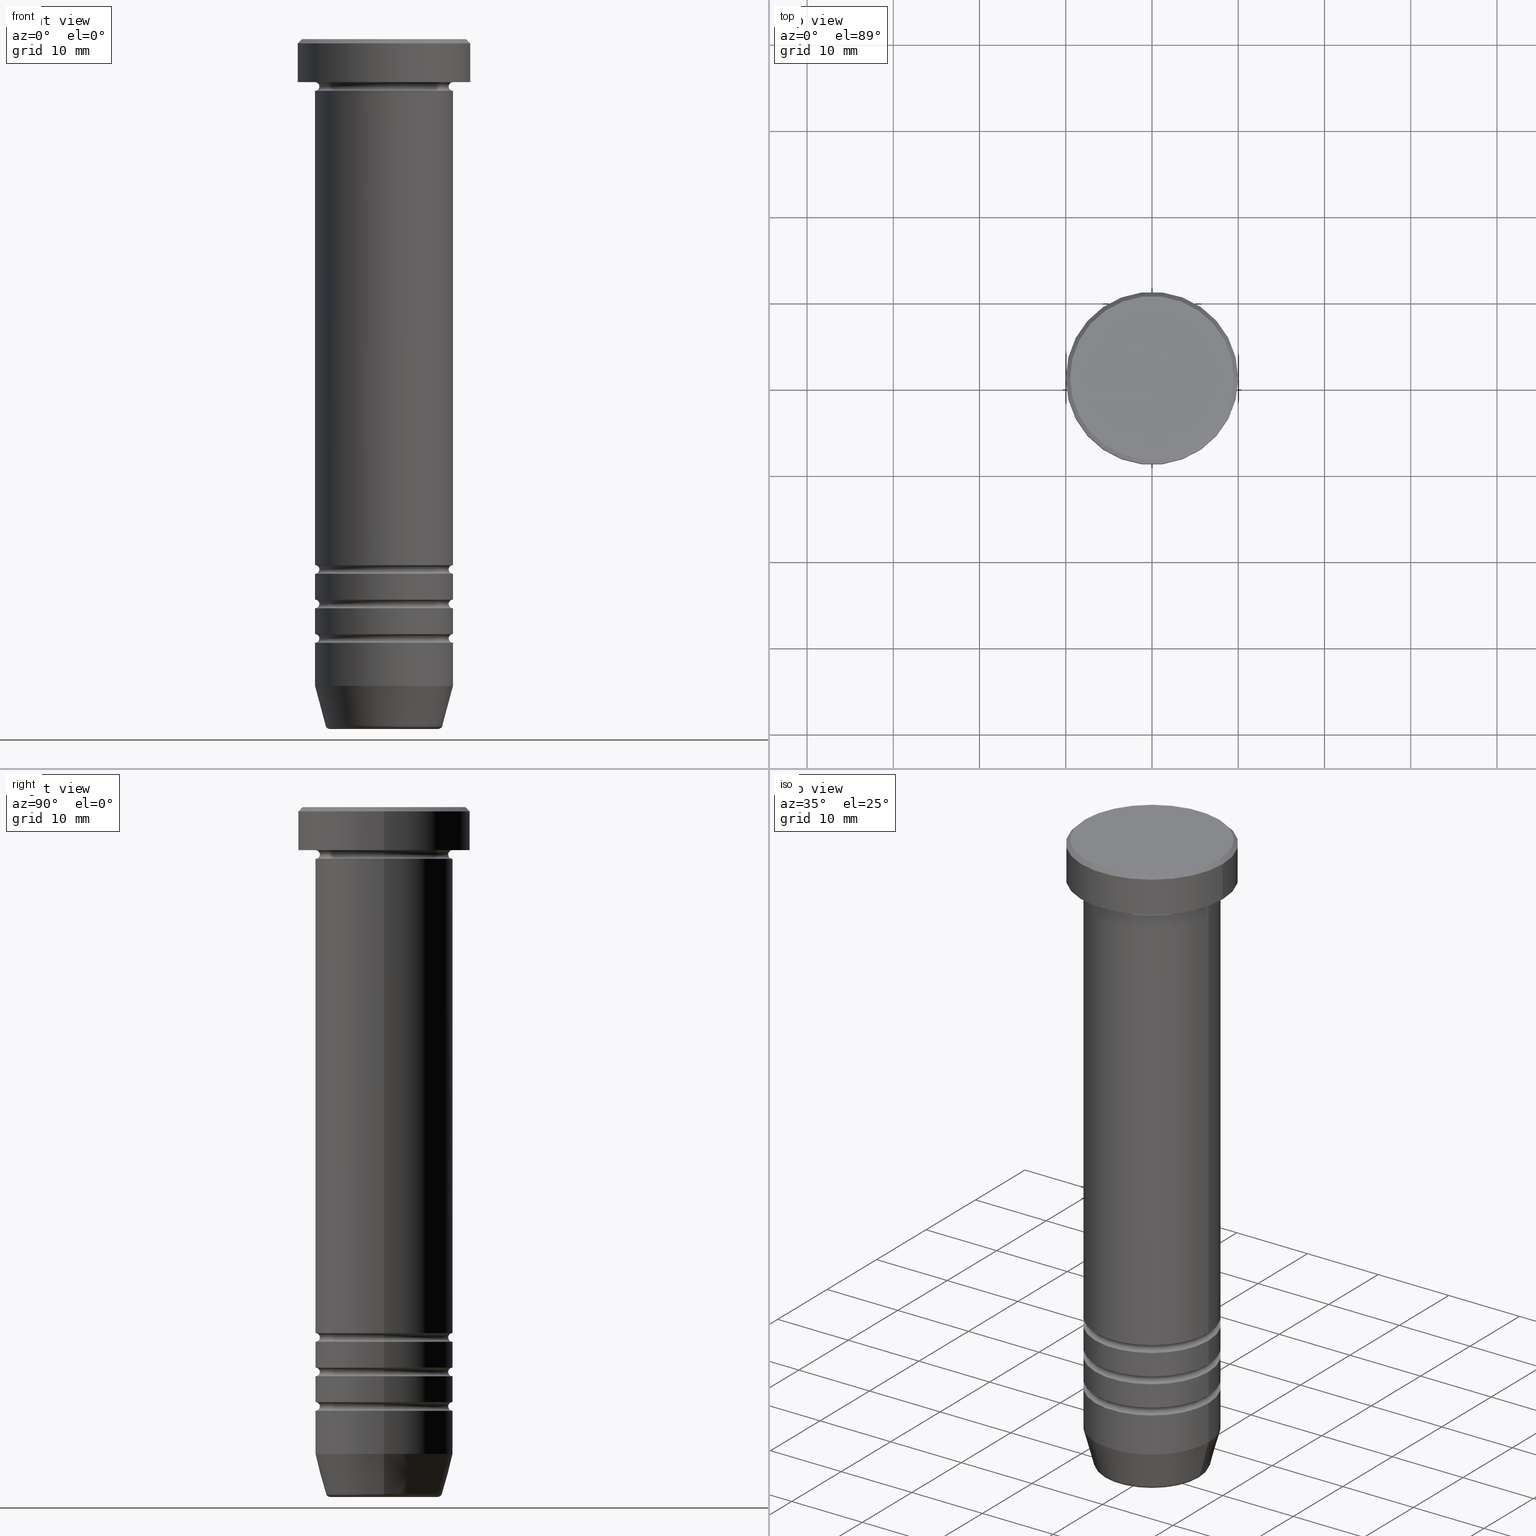
[diagram: canonical four-view strip — front | top / right | iso, engineering-drawing reading convention]
A machine part, canonical four-view strip (front | top / right | iso — engineering-drawing reading convention). The complete STEP part file that produces these views, byte-faithful:
ISO-10303-21;
HEADER;
FILE_DESCRIPTION (( 'STEP AP203' ),
    '1' );
FILE_NAME ('0624.STEP',
    '2024-01-02T23:04:24',
    ( '' ),
    ( '' ),
    'SwSTEP 2.0',
    'SolidWorks 2019',
    '' );
FILE_SCHEMA (( 'CONFIG_CONTROL_DESIGN' ));
ENDSEC;

DATA;
#1 = VECTOR ( 'NONE', #960, 1000.000000000000114 ) ;
#2 = DIRECTION ( 'NONE',  ( -0.000000000000000000, -0.000000000000000000, 1.000000000000000000 ) ) ;
#3 = AXIS2_PLACEMENT_3D ( 'NONE', #445, #770, #609 ) ;
#4 = DIRECTION ( 'NONE',  ( 1.000000000000000000, 0.000000000000000000, 0.000000000000000000 ) ) ;
#5 = APPROVAL_STATUS ( 'not_yet_approved' ) ;
#6 = APPROVAL ( #157, 'NEUR�EN�' ) ;
#7 = CYLINDRICAL_SURFACE ( 'NONE', #401, 8.000000000000000000 ) ;
#8 = CARTESIAN_POINT ( 'NONE',  ( 0.000000000000000000, 0.000000000000000000, -0.5000000000000091038 ) ) ;
#9 = ORIENTED_EDGE ( 'NONE', *, *, #424, .F. ) ;
#10 = CARTESIAN_POINT ( 'NONE',  ( 0.000000000000000000, 0.000000000000000000, 0.000000000000000000 ) ) ;
#11 = DIRECTION ( 'NONE',  ( -1.000000000000000000, 1.224646799147353454E-16, 0.000000000000000000 ) ) ;
#12 = ADVANCED_FACE ( 'NONE', ( #456 ), #31, .F. ) ;
#13 = EDGE_LOOP ( 'NONE', ( #234, #183, #336, #861 ) ) ;
#14 = CARTESIAN_POINT ( 'NONE',  ( 8.000000000000000000, 0.000000000000000000, -20.00000000000000000 ) ) ;
#15 = AXIS2_PLACEMENT_3D ( 'NONE', #552, #655, #148 ) ;
#16 = CARTESIAN_POINT ( 'NONE',  ( 6.660254037844381081, 0.000000000000000000, -79.99999999999998579 ) ) ;
#17 = AXIS2_PLACEMENT_3D ( 'NONE', #958, #70, #142 ) ;
#18 = EDGE_CURVE ( 'NONE', #266, #373, #744, .T. ) ;
#19 = EDGE_LOOP ( 'NONE', ( #27, #457, #101, #524 ) ) ;
#20 = DIRECTION ( 'NONE',  ( -1.000000000000000000, 0.000000000000000000, 0.000000000000000000 ) ) ;
#21 = CARTESIAN_POINT ( 'NONE',  ( 0.000000000000000000, 0.000000000000000000, -65.49999999999998579 ) ) ;
#22 = DIRECTION ( 'NONE',  ( 0.000000000000000000, 0.000000000000000000, -1.000000000000000000 ) ) ;
#23 = ORIENTED_EDGE ( 'NONE', *, *, #213, .T. ) ;
#24 = ORIENTED_EDGE ( 'NONE', *, *, #836, .T. ) ;
#25 = DIRECTION ( 'NONE',  ( 1.000000000000000000, 0.000000000000000000, 0.000000000000000000 ) ) ;
#26 = CARTESIAN_POINT ( 'NONE',  ( 0.000000000000000000, 0.000000000000000000, -20.00000000000000000 ) ) ;
#27 = ORIENTED_EDGE ( 'NONE', *, *, #817, .F. ) ;
#28 = EDGE_CURVE ( 'NONE', #908, #313, #221, .T. ) ;
#29 = CARTESIAN_POINT ( 'NONE',  ( -6.759553456999437770, 9.037619948979306213E-16, -79.62940952255125637 ) ) ;
#30 = CYLINDRICAL_SURFACE ( 'NONE', #998, 8.000000000000000000 ) ;
#31 = TOROIDAL_SURFACE ( 'NONE', #911, 7.999999999999994671, 0.5000000000000000000 ) ;
#32 = AXIS2_PLACEMENT_3D ( 'NONE', #91, #426, #511 ) ;
#33 = DIRECTION ( 'NONE',  ( -0.000000000000000000, -0.000000000000000000, 1.000000000000000000 ) ) ;
#34 = VERTEX_POINT ( 'NONE', #546 ) ;
#35 = CIRCLE ( 'NONE', #468, 0.5000000000000004441 ) ;
#36 = TOROIDAL_SURFACE ( 'NONE', #3, 6.276590543854900339, 0.5000000000000000000 ) ;
#37 = CC_DESIGN_PERSON_AND_ORGANIZATION_ASSIGNMENT ( #820, #80, ( #732 ) ) ;
#38 = DIRECTION ( 'NONE',  ( 0.000000000000000000, 0.000000000000000000, -1.000000000000000000 ) ) ;
#39 = ORIENTED_EDGE ( 'NONE', *, *, #945, .T. ) ;
#40 = DIRECTION ( 'NONE',  ( 0.000000000000000000, 0.000000000000000000, -1.000000000000000000 ) ) ;
#41 = DIRECTION ( 'NONE',  ( -0.000000000000000000, -0.000000000000000000, 1.000000000000000000 ) ) ;
#42 = ORIENTED_EDGE ( 'NONE', *, *, #405, .T. ) ;
#43 = CARTESIAN_POINT ( 'NONE',  ( -6.276590543854900339, 7.982336011935116411E-16, -79.99999999999998579 ) ) ;
#44 = FACE_OUTER_BOUND ( 'NONE', #13, .T. ) ;
#45 = ADVANCED_FACE ( 'NONE', ( #1022 ), #718, .T. ) ;
#46 = CARTESIAN_POINT ( 'NONE',  ( 0.000000000000000000, 0.000000000000000000, -5.000000000000000000 ) ) ;
#47 = EDGE_LOOP ( 'NONE', ( #501, #961, #1023, #454 ) ) ;
#48 = DIRECTION ( 'NONE',  ( -0.000000000000000000, -0.000000000000000000, 1.000000000000000000 ) ) ;
#49 = CLOSED_SHELL ( 'NONE', ( #928, #71, #850, #99, #61, #753, #495, #863, #594, #79, #886, #758, #133, #45, #207, #473, #789, #114, #544, #1004, #12, #1008, #1061, #128, #83, #564 ) ) ;
#50 = FACE_OUTER_BOUND ( 'NONE', #472, .T. ) ;
#51 = AXIS2_PLACEMENT_3D ( 'NONE', #581, #994, #828 ) ;
#52 = EDGE_CURVE ( 'NONE', #761, #438, #290, .T. ) ;
#53 = AXIS2_PLACEMENT_3D ( 'NONE', #330, #837, #584 ) ;
#54 = VECTOR ( 'NONE', #601, 1000.000000000000000 ) ;
#55 = CARTESIAN_POINT ( 'NONE',  ( 0.000000000000000000, 0.000000000000000000, -74.99999999999998579 ) ) ;
#56 = DIRECTION ( 'NONE',  ( -1.000000000000000000, 1.224646799147353454E-16, 0.000000000000000000 ) ) ;
#57 = ORIENTED_EDGE ( 'NONE', *, *, #355, .T. ) ;
#58 = CARTESIAN_POINT ( 'NONE',  ( -8.000000000000000000, 9.797174393178825657E-16, -65.99999999999998579 ) ) ;
#59 = CYLINDRICAL_SURFACE ( 'NONE', #170, 10.00000000000000000 ) ;
#60 = CARTESIAN_POINT ( 'NONE',  ( 0.000000000000000000, 0.000000000000000000, 0.000000000000000000 ) ) ;
#61 = ADVANCED_FACE ( 'NONE', ( #204 ), #149, .F. ) ;
#62 = CARTESIAN_POINT ( 'NONE',  ( 0.000000000000000000, 0.000000000000000000, -79.99999999999998579 ) ) ;
#63 = ORIENTED_EDGE ( 'NONE', *, *, #120, .F. ) ;
#64 = DIRECTION ( 'NONE',  ( 1.000000000000000000, 0.000000000000000000, 0.000000000000000000 ) ) ;
#65 = CIRCLE ( 'NONE', #674, 8.000000000000000000 ) ;
#66 = VERTEX_POINT ( 'NONE', #372 ) ;
#67 = CIRCLE ( 'NONE', #912, 10.00000000000000000 ) ;
#68 = COORDINATED_UNIVERSAL_TIME_OFFSET ( 1, 0, .AHEAD. ) ;
#69 = LOCAL_TIME ( 0, 4, 24.00000000000000000, #247 ) ;
#70 = DIRECTION ( 'NONE',  ( 0.000000000000000000, -1.000000000000000000, 0.000000000000000000 ) ) ;
#71 = ADVANCED_FACE ( 'NONE', ( #366 ), #621, .F. ) ;
#72 = CARTESIAN_POINT ( 'NONE',  ( -7.499999999999996447, 9.491012693391983843E-16, -65.49999999999998579 ) ) ;
#73 = PERSON_AND_ORGANIZATION ( #773, #748 ) ;
#74 = DIRECTION ( 'NONE',  ( 0.000000000000000000, -1.000000000000000000, 0.000000000000000000 ) ) ;
#75 = VERTEX_POINT ( 'NONE', #201 ) ;
#76 = DIRECTION ( 'NONE',  ( 1.000000000000000000, 0.000000000000000000, 0.000000000000000000 ) ) ;
#77 = ORIENTED_EDGE ( 'NONE', *, *, #557, .T. ) ;
#78 = ORIENTED_EDGE ( 'NONE', *, *, #923, .F. ) ;
#79 = ADVANCED_FACE ( 'NONE', ( #630 ), #359, .T. ) ;
#80 = PERSON_AND_ORGANIZATION_ROLE ( 'classification_officer' ) ;
#81 = LINE ( 'NONE', #591, #327 ) ;
#82 = EDGE_LOOP ( 'NONE', ( #656, #701, #481, #63 ) ) ;
#83 = ADVANCED_FACE ( 'NONE', ( #134 ), #1060, .F. ) ;
#84 = PERSON_AND_ORGANIZATION ( #773, #748 ) ;
#85 = AXIS2_PLACEMENT_3D ( 'NONE', #469, #41, #378 ) ;
#86 = CIRCLE ( 'NONE', #519, 0.5000000000000004441 ) ;
#87 = FACE_OUTER_BOUND ( 'NONE', #113, .T. ) ;
#88 = AXIS2_PLACEMENT_3D ( 'NONE', #429, #246, #573 ) ;
#89 = AXIS2_PLACEMENT_3D ( 'NONE', #865, #538, #775 ) ;
#90 = ADVANCED_BREP_SHAPE_REPRESENTATION ( '0624', ( #871, #525, #696 ), #385 ) ;
#91 = CARTESIAN_POINT ( 'NONE',  ( -7.999999999999994671, 0.000000000000000000, -61.49999999999999289 ) ) ;
#92 = ORIENTED_EDGE ( 'NONE', *, *, #348, .T. ) ;
#93 = ORIENTED_EDGE ( 'NONE', *, *, #737, .T. ) ;
#94 = DIRECTION ( 'NONE',  ( 0.000000000000000000, 0.000000000000000000, -1.000000000000000000 ) ) ;
#95 = DIRECTION ( 'NONE',  ( -0.2588190451025214611, 3.169619151431774186E-17, 0.9659258262890679791 ) ) ;
#96 = ORIENTED_EDGE ( 'NONE', *, *, #450, .T. ) ;
#97 = VERTEX_POINT ( 'NONE', #627 ) ;
#98 = LINE ( 'NONE', #578, #362 ) ;
#99 = ADVANCED_FACE ( 'NONE', ( #528 ), #500, .F. ) ;
#100 = CARTESIAN_POINT ( 'NONE',  ( -7.999999999999992895, 9.797174393178819741E-16, -68.99999999999997158 ) ) ;
#101 = ORIENTED_EDGE ( 'NONE', *, *, #120, .T. ) ;
#102 = ORIENTED_EDGE ( 'NONE', *, *, #741, .F. ) ;
#103 = VERTEX_POINT ( 'NONE', #859 ) ;
#104 = CYLINDRICAL_SURFACE ( 'NONE', #624, 7.999999999999996447 ) ;
#105 = CIRCLE ( 'NONE', #796, 6.276590543854900339 ) ;
#106 = DIRECTION ( 'NONE',  ( 1.000000000000000000, 0.000000000000000000, 0.000000000000000000 ) ) ;
#107 = AXIS2_PLACEMENT_3D ( 'NONE', #531, #691, #375 ) ;
#108 = EDGE_LOOP ( 'NONE', ( #102, #857, #121, #169 ) ) ;
#109 = AXIS2_PLACEMENT_3D ( 'NONE', #208, #350, #685 ) ;
#110 = DESIGN_CONTEXT ( 'detailed design', #670, 'design' ) ;
#111 = DIRECTION ( 'NONE',  ( 0.7071067811865451302, 8.659560562354903276E-17, -0.7071067811865500152 ) ) ;
#112 = CARTESIAN_POINT ( 'NONE',  ( 0.000000000000000000, 0.000000000000000000, -61.49999999999999289 ) ) ;
#113 = EDGE_LOOP ( 'NONE', ( #700, #206, #471, #325 ) ) ;
#114 = ADVANCED_FACE ( 'NONE', ( #793 ), #1016, .T. ) ;
#115 = DIRECTION ( 'NONE',  ( 1.224646799147353207E-16, 1.000000000000000000, 0.000000000000000000 ) ) ;
#116 = PLANE ( 'NONE',  #400 ) ;
#117 = EDGE_LOOP ( 'NONE', ( #921, #543, #42, #968 ) ) ;
#118 = DIRECTION ( 'NONE',  ( 1.000000000000000000, 0.000000000000000000, 0.000000000000000000 ) ) ;
#119 = ORIENTED_EDGE ( 'NONE', *, *, #200, .T. ) ;
#120 = EDGE_CURVE ( 'NONE', #364, #266, #186, .T. ) ;
#121 = ORIENTED_EDGE ( 'NONE', *, *, #811, .F. ) ;
#122 = DIRECTION ( 'NONE',  ( 0.000000000000000000, 0.000000000000000000, -1.000000000000000000 ) ) ;
#123 = AXIS2_PLACEMENT_3D ( 'NONE', #870, #463, #866 ) ;
#124 = FACE_OUTER_BOUND ( 'NONE', #686, .T. ) ;
#125 = CIRCLE ( 'NONE', #486, 7.999999999999998224 ) ;
#126 = VERTEX_POINT ( 'NONE', #872 ) ;
#127 = AXIS2_PLACEMENT_3D ( 'NONE', #929, #189, #616 ) ;
#128 = ADVANCED_FACE ( 'NONE', ( #124 ), #259, .F. ) ;
#129 = DIRECTION ( 'NONE',  ( -0.000000000000000000, -0.000000000000000000, 1.000000000000000000 ) ) ;
#130 = CARTESIAN_POINT ( 'NONE',  ( 0.000000000000000000, 0.000000000000000000, -74.99999999999998579 ) ) ;
#131 = DIRECTION ( 'NONE',  ( 1.000000000000000000, 0.000000000000000000, 0.000000000000000000 ) ) ;
#132 = CARTESIAN_POINT ( 'NONE',  ( 8.000000000000000000, 0.000000000000000000, 0.000000000000000000 ) ) ;
#133 = ADVANCED_FACE ( 'NONE', ( #50 ), #238, .T. ) ;
#134 = FACE_OUTER_BOUND ( 'NONE', #369, .T. ) ;
#135 = DIRECTION ( 'NONE',  ( 1.000000000000000000, 0.000000000000000000, 0.000000000000000000 ) ) ;
#136 = CARTESIAN_POINT ( 'NONE',  ( 0.000000000000000000, 0.000000000000000000, -69.49999999999997158 ) ) ;
#137 = CIRCLE ( 'NONE', #677, 10.00000000000000000 ) ;
#138 = AXIS2_PLACEMENT_3D ( 'NONE', #704, #280, #699 ) ;
#139 = DIRECTION ( 'NONE',  ( -0.000000000000000000, -0.000000000000000000, 1.000000000000000000 ) ) ;
#140 = DIRECTION ( 'NONE',  ( 0.000000000000000000, 0.000000000000000000, -1.000000000000000000 ) ) ;
#141 = EDGE_CURVE ( 'NONE', #364, #719, #240, .T. ) ;
#142 = DIRECTION ( 'NONE',  ( 0.000000000000000000, 0.000000000000000000, -1.000000000000000000 ) ) ;
#143 = PRODUCT ( '0624', '0624', '', ( #403 ) ) ;
#144 = DIRECTION ( 'NONE',  ( -0.000000000000000000, -0.000000000000000000, 1.000000000000000000 ) ) ;
#145 = EDGE_CURVE ( 'NONE', #319, #285, #860, .T. ) ;
#146 = DATE_AND_TIME ( #559, #470 ) ;
#147 = FACE_OUTER_BOUND ( 'NONE', #195, .T. ) ;
#148 = DIRECTION ( 'NONE',  ( -1.000000000000000000, 0.000000000000000000, 0.000000000000000000 ) ) ;
#149 = TOROIDAL_SURFACE ( 'NONE', #826, 7.999999999999994671, 0.5000000000000000000 ) ;
#150 = AXIS2_PLACEMENT_3D ( 'NONE', #613, #776, #792 ) ;
#151 = PERSON_AND_ORGANIZATION ( #773, #748 ) ;
#152 = AXIS2_PLACEMENT_3D ( 'NONE', #26, #283, #357 ) ;
#153 = AXIS2_PLACEMENT_3D ( 'NONE', #952, #708, #623 ) ;
#154 = DIRECTION ( 'NONE',  ( -1.000000000000000000, -1.224646799147353454E-16, 0.000000000000000000 ) ) ;
#155 = EDGE_CURVE ( 'NONE', #438, #761, #65, .T. ) ;
#156 = ORIENTED_EDGE ( 'NONE', *, *, #874, .T. ) ;
#157 = APPROVAL_STATUS ( 'not_yet_approved' ) ;
#158 = FACE_OUTER_BOUND ( 'NONE', #257, .T. ) ;
#159 = CC_DESIGN_DATE_AND_TIME_ASSIGNMENT ( #909, #565, ( #440 ) ) ;
#160 = DIRECTION ( 'NONE',  ( -0.000000000000000000, -0.000000000000000000, 1.000000000000000000 ) ) ;
#161 = ORIENTED_EDGE ( 'NONE', *, *, #181, .T. ) ;
#162 = FACE_OUTER_BOUND ( 'NONE', #337, .T. ) ;
#163 = ORIENTED_EDGE ( 'NONE', *, *, #836, .F. ) ;
#164 = CARTESIAN_POINT ( 'NONE',  ( -7.999999999999994671, 0.000000000000000000, -65.49999999999998579 ) ) ;
#165 = VERTEX_POINT ( 'NONE', #1041 ) ;
#166 = ORIENTED_EDGE ( 'NONE', *, *, #769, .T. ) ;
#167 = EDGE_LOOP ( 'NONE', ( #583, #995, #576, #1000 ) ) ;
#168 = EDGE_LOOP ( 'NONE', ( #422, #396, #315, #444 ) ) ;
#169 = ORIENTED_EDGE ( 'NONE', *, *, #644, .F. ) ;
#170 = AXIS2_PLACEMENT_3D ( 'NONE', #391, #144, #648 ) ;
#171 = DIRECTION ( 'NONE',  ( 0.000000000000000000, -1.000000000000000000, 0.000000000000000000 ) ) ;
#172 = VECTOR ( 'NONE', #395, 1000.000000000000000 ) ;
#173 = CIRCLE ( 'NONE', #608, 6.759553456999436882 ) ;
#174 = DIRECTION ( 'NONE',  ( 1.000000000000000000, 0.000000000000000000, 0.000000000000000000 ) ) ;
#175 = ORIENTED_EDGE ( 'NONE', *, *, #503, .F. ) ;
#176 = EDGE_CURVE ( 'NONE', #719, #364, #978, .T. ) ;
#177 = DIRECTION ( 'NONE',  ( -0.000000000000000000, -0.000000000000000000, 1.000000000000000000 ) ) ;
#178 = LINE ( 'NONE', #507, #876 ) ;
#179 = VERTEX_POINT ( 'NONE', #1051 ) ;
#180 = ORIENTED_EDGE ( 'NONE', *, *, #722, .F. ) ;
#181 = EDGE_CURVE ( 'NONE', #669, #66, #465, .T. ) ;
#182 = CARTESIAN_POINT ( 'NONE',  ( 7.999999999999994671, 9.797174393178819741E-16, -61.49999999999999289 ) ) ;
#183 = ORIENTED_EDGE ( 'NONE', *, *, #741, .T. ) ;
#184 = DIRECTION ( 'NONE',  ( -0.000000000000000000, -0.000000000000000000, 1.000000000000000000 ) ) ;
#185 = ORIENTED_EDGE ( 'NONE', *, *, #386, .F. ) ;
#186 = CIRCLE ( 'NONE', #726, 0.5000000000000004441 ) ;
#187 = CARTESIAN_POINT ( 'NONE',  ( 7.999999999999998224, 0.000000000000000000, -64.99999999999998579 ) ) ;
#188 = AXIS2_PLACEMENT_3D ( 'NONE', #755, #254, #174 ) ;
#189 = DIRECTION ( 'NONE',  ( -0.000000000000000000, -0.000000000000000000, 1.000000000000000000 ) ) ;
#190 = AXIS2_PLACEMENT_3D ( 'NONE', #969, #1056, #135 ) ;
#191 = ORIENTED_EDGE ( 'NONE', *, *, #270, .T. ) ;
#192 = CARTESIAN_POINT ( 'NONE',  ( 0.000000000000000000, 0.000000000000000000, -61.49999999999999289 ) ) ;
#193 = EDGE_CURVE ( 'NONE', #165, #34, #491, .T. ) ;
#194 = AXIS2_PLACEMENT_3D ( 'NONE', #667, #2, #986 ) ;
#195 = EDGE_LOOP ( 'NONE', ( #791, #341, #851, #610 ) ) ;
#196 = VERTEX_POINT ( 'NONE', #72 ) ;
#197 = CARTESIAN_POINT ( 'NONE',  ( 0.000000000000000000, 0.000000000000000000, -69.49999999999997158 ) ) ;
#198 = FACE_OUTER_BOUND ( 'NONE', #82, .T. ) ;
#199 = ORIENTED_EDGE ( 'NONE', *, *, #334, .F. ) ;
#200 = EDGE_CURVE ( 'NONE', #849, #733, #502, .T. ) ;
#201 = CARTESIAN_POINT ( 'NONE',  ( -8.000000000000000000, 9.797174393178825657E-16, -20.00000000000000000 ) ) ;
#202 = CARTESIAN_POINT ( 'NONE',  ( 7.999999999999996447, 0.000000000000000000, 0.000000000000000000 ) ) ;
#203 = CARTESIAN_POINT ( 'NONE',  ( 7.999999999999992895, 0.000000000000000000, -60.99999999999999289 ) ) ;
#204 = FACE_OUTER_BOUND ( 'NONE', #518, .T. ) ;
#205 = ORIENTED_EDGE ( 'NONE', *, *, #651, .T. ) ;
#206 = ORIENTED_EDGE ( 'NONE', *, *, #1033, .T. ) ;
#207 = ADVANCED_FACE ( 'NONE', ( #479 ), #550, .T. ) ;
#208 = CARTESIAN_POINT ( 'NONE',  ( 0.000000000000000000, 0.000000000000000000, 0.000000000000000000 ) ) ;
#209 = CYLINDRICAL_SURFACE ( 'NONE', #345, 7.999999999999996447 ) ;
#210 = AXIS2_PLACEMENT_3D ( 'NONE', #249, #681, #263 ) ;
#211 = CIRCLE ( 'NONE', #933, 7.499999999999995559 ) ;
#212 = CC_DESIGN_APPROVAL ( #339, ( #732 ) ) ;
#213 = EDGE_CURVE ( 'NONE', #926, #488, #1031, .T. ) ;
#214 = DIRECTION ( 'NONE',  ( -1.000000000000000000, 0.000000000000000000, 0.000000000000000000 ) ) ;
#215 = DIRECTION ( 'NONE',  ( -1.000000000000000000, 1.224646799147351482E-16, 0.000000000000000000 ) ) ;
#216 = DIRECTION ( 'NONE',  ( 0.000000000000000000, 0.000000000000000000, -1.000000000000000000 ) ) ;
#217 = DIRECTION ( 'NONE',  ( -0.000000000000000000, -0.000000000000000000, 1.000000000000000000 ) ) ;
#218 = DIRECTION ( 'NONE',  ( -0.000000000000000000, -0.000000000000000000, 1.000000000000000000 ) ) ;
#219 = EDGE_LOOP ( 'NONE', ( #78, #515, #1042, #914 ) ) ;
#220 = CARTESIAN_POINT ( 'NONE',  ( 7.500000000000000000, 0.000000000000000000, -5.500000000000000000 ) ) ;
#221 = CIRCLE ( 'NONE', #653, 7.999999999999998224 ) ;
#222 = ADVANCED_FACE ( 'NONE', ( #555 ), #293, .F. ) ;
#223 = CARTESIAN_POINT ( 'NONE',  ( 0.000000000000000000, 0.000000000000000000, 0.000000000000000000 ) ) ;
#224 = AXIS2_PLACEMENT_3D ( 'NONE', #192, #22, #838 ) ;
#225 = AXIS2_PLACEMENT_3D ( 'NONE', #765, #171, #344 ) ;
#226 = DIRECTION ( 'NONE',  ( 1.000000000000000000, 0.000000000000000000, 0.000000000000000000 ) ) ;
#227 = DIRECTION ( 'NONE',  ( 1.000000000000000000, 0.000000000000000000, 0.000000000000000000 ) ) ;
#228 = APPROVAL ( #5, 'NEUR�EN�' ) ;
#229 = EDGE_LOOP ( 'NONE', ( #831, #824, #275, #711 ) ) ;
#230 = PERSON_AND_ORGANIZATION ( #773, #748 ) ;
#231 = CARTESIAN_POINT ( 'NONE',  ( 0.000000000000000000, 0.000000000000000000, -64.99999999999998579 ) ) ;
#232 = ORIENTED_EDGE ( 'NONE', *, *, #289, .F. ) ;
#233 = DIRECTION ( 'NONE',  ( 1.000000000000000000, 0.000000000000000000, 0.000000000000000000 ) ) ;
#234 = ORIENTED_EDGE ( 'NONE', *, *, #801, .F. ) ;
#235 = COORDINATED_UNIVERSAL_TIME_OFFSET ( 1, 0, .AHEAD. ) ;
#236 = ADVANCED_FACE ( 'NONE', ( #632 ), #324, .T. ) ;
#237 = DIRECTION ( 'NONE',  ( -0.000000000000000000, -0.000000000000000000, 1.000000000000000000 ) ) ;
#238 = CYLINDRICAL_SURFACE ( 'NONE', #931, 7.999999999999996447 ) ;
#239 = ORIENTED_EDGE ( 'NONE', *, *, #530, .F. ) ;
#240 = CIRCLE ( 'NONE', #842, 7.500000000000000000 ) ;
#241 = CIRCLE ( 'NONE', #485, 10.00000000000000000 ) ;
#242 = CIRCLE ( 'NONE', #383, 0.5000000000000004441 ) ;
#243 = DATE_AND_TIME ( #738, #659 ) ;
#244 = AXIS2_PLACEMENT_3D ( 'NONE', #1005, #177, #757 ) ;
#245 = CC_DESIGN_PERSON_AND_ORGANIZATION_ASSIGNMENT ( #899, #646, ( #440 ) ) ;
#246 = DIRECTION ( 'NONE',  ( -1.224646799147353207E-16, 1.000000000000000000, 0.000000000000000000 ) ) ;
#247 = COORDINATED_UNIVERSAL_TIME_OFFSET ( 1, 0, .AHEAD. ) ;
#248 = LINE ( 'NONE', #253, #416 ) ;
#249 = CARTESIAN_POINT ( 'NONE',  ( 0.000000000000000000, 0.000000000000000000, -5.000000000000000000 ) ) ;
#250 = ORIENTED_EDGE ( 'NONE', *, *, #959, .T. ) ;
#251 = ORIENTED_EDGE ( 'NONE', *, *, #832, .T. ) ;
#252 = DIRECTION ( 'NONE',  ( 0.000000000000000000, 0.000000000000000000, 1.000000000000000000 ) ) ;
#253 = CARTESIAN_POINT ( 'NONE',  ( -8.000000000000000000, 9.797174393178825657E-16, 0.000000000000000000 ) ) ;
#254 = DIRECTION ( 'NONE',  ( -0.000000000000000000, -0.000000000000000000, 1.000000000000000000 ) ) ;
#255 = EDGE_LOOP ( 'NONE', ( #93, #23 ) ) ;
#256 = ADVANCED_FACE ( 'NONE', ( #318 ), #537, .F. ) ;
#257 = EDGE_LOOP ( 'NONE', ( #881, #462, #604, #239 ) ) ;
#258 = ORIENTED_EDGE ( 'NONE', *, *, #769, .F. ) ;
#259 = TOROIDAL_SURFACE ( 'NONE', #794, 7.999999999999994671, 0.5000000000000000000 ) ;
#260 = AXIS2_PLACEMENT_3D ( 'NONE', #130, #937, #1029 ) ;
#261 = PLANE ( 'NONE',  #53 ) ;
#262 = LOCAL_TIME ( 0, 4, 24.00000000000000000, #412 ) ;
#263 = DIRECTION ( 'NONE',  ( -1.000000000000000000, 0.000000000000000000, 0.000000000000000000 ) ) ;
#264 = EDGE_LOOP ( 'NONE', ( #77, #645, #92, #427 ) ) ;
#265 = DIRECTION ( 'NONE',  ( -0.000000000000000000, -0.000000000000000000, 1.000000000000000000 ) ) ;
#266 = VERTEX_POINT ( 'NONE', #984 ) ;
#267 = DIRECTION ( 'NONE',  ( 0.2588190451025214611, 0.000000000000000000, 0.9659258262890679791 ) ) ;
#268 = VERTEX_POINT ( 'NONE', #880 ) ;
#269 = SHAPE_DEFINITION_REPRESENTATION ( #754, #90 ) ;
#270 = EDGE_CURVE ( 'NONE', #808, #34, #67, .T. ) ;
#271 = DIRECTION ( 'NONE',  ( 0.000000000000000000, 0.000000000000000000, -1.000000000000000000 ) ) ;
#272 = CARTESIAN_POINT ( 'NONE',  ( -8.000000000000000000, 9.797174393178825657E-16, 0.000000000000000000 ) ) ;
#273 = CARTESIAN_POINT ( 'NONE',  ( -7.999999999999998224, 9.797174393178823685E-16, -64.99999999999998579 ) ) ;
#274 = EDGE_LOOP ( 'NONE', ( #946, #703, #517, #740 ) ) ;
#275 = ORIENTED_EDGE ( 'NONE', *, *, #959, .F. ) ;
#276 = ORIENTED_EDGE ( 'NONE', *, *, #424, .T. ) ;
#277 = CIRCLE ( 'NONE', #844, 0.5000000000000004441 ) ;
#278 = ADVANCED_FACE ( 'NONE', ( #803 ), #59, .T. ) ;
#279 = AXIS2_PLACEMENT_3D ( 'NONE', #894, #387, #154 ) ;
#280 = DIRECTION ( 'NONE',  ( -0.000000000000000000, -0.000000000000000000, 1.000000000000000000 ) ) ;
#281 = CONICAL_SURFACE ( 'NONE', #153, 9.499999999999994671, 0.7853981633974447263 ) ;
#282 = CARTESIAN_POINT ( 'NONE',  ( 0.000000000000000000, 0.000000000000000000, -6.000000000000000000 ) ) ;
#283 = DIRECTION ( 'NONE',  ( -0.000000000000000000, -0.000000000000000000, 1.000000000000000000 ) ) ;
#284 = DIRECTION ( 'NONE',  ( -0.000000000000000000, -0.000000000000000000, 1.000000000000000000 ) ) ;
#285 = VERTEX_POINT ( 'NONE', #807 ) ;
#286 = CARTESIAN_POINT ( 'NONE',  ( 6.759553456999437770, 0.000000000000000000, -79.62940952255125637 ) ) ;
#287 = DIRECTION ( 'NONE',  ( -1.000000000000000000, 0.000000000000000000, 0.000000000000000000 ) ) ;
#288 = DIRECTION ( 'NONE',  ( -0.000000000000000000, -0.000000000000000000, 1.000000000000000000 ) ) ;
#289 = EDGE_CURVE ( 'NONE', #688, #354, #137, .T. ) ;
#290 = CIRCLE ( 'NONE', #962, 8.000000000000000000 ) ;
#291 = DIRECTION ( 'NONE',  ( 1.000000000000000000, 0.000000000000000000, 0.000000000000000000 ) ) ;
#292 = CARTESIAN_POINT ( 'NONE',  ( 0.000000000000000000, 0.000000000000000000, -5.500000000000000000 ) ) ;
#293 = TOROIDAL_SURFACE ( 'NONE', #415, 8.000000000000000000, 0.5000000000000000000 ) ;
#294 = AXIS2_PLACEMENT_3D ( 'NONE', #388, #721, #967 ) ;
#295 = DIRECTION ( 'NONE',  ( -0.000000000000000000, -0.000000000000000000, 1.000000000000000000 ) ) ;
#296 = CIRCLE ( 'NONE', #279, 0.5000000000000004441 ) ;
#297 = VECTOR ( 'NONE', #129, 1000.000000000000000 ) ;
#298 = DIRECTION ( 'NONE',  ( 0.000000000000000000, -0.000000000000000000, 1.000000000000000000 ) ) ;
#299 = DIRECTION ( 'NONE',  ( 1.000000000000000000, 0.000000000000000000, 0.000000000000000000 ) ) ;
#300 = EDGE_CURVE ( 'NONE', #354, #34, #81, .T. ) ;
#301 = DIRECTION ( 'NONE',  ( 0.000000000000000000, 0.000000000000000000, -1.000000000000000000 ) ) ;
#302 = DIRECTION ( 'NONE',  ( 1.000000000000000000, 0.000000000000000000, 0.000000000000000000 ) ) ;
#303 = ORIENTED_EDGE ( 'NONE', *, *, #348, .F. ) ;
#304 = DIRECTION ( 'NONE',  ( 1.000000000000000000, 0.000000000000000000, 0.000000000000000000 ) ) ;
#305 = EDGE_CURVE ( 'NONE', #373, #266, #606, .T. ) ;
#306 = AXIS2_PLACEMENT_3D ( 'NONE', #46, #284, #875 ) ;
#307 = CARTESIAN_POINT ( 'NONE',  ( 0.000000000000000000, 0.000000000000000000, -65.99999999999998579 ) ) ;
#308 = AXIS2_PLACEMENT_3D ( 'NONE', #727, #652, #1043 ) ;
#309 = TOROIDAL_SURFACE ( 'NONE', #847, 7.999999999999994671, 0.5000000000000000000 ) ;
#310 = CALENDAR_DATE ( 2024, 3, 1 ) ;
#311 = CARTESIAN_POINT ( 'NONE',  ( -7.999999999999996447, 9.797174393178821713E-16, 0.000000000000000000 ) ) ;
#312 = DIRECTION ( 'NONE',  ( -0.000000000000000000, -0.000000000000000000, 1.000000000000000000 ) ) ;
#313 = VERTEX_POINT ( 'NONE', #273 ) ;
#314 = EDGE_CURVE ( 'NONE', #619, #97, #587, .T. ) ;
#315 = ORIENTED_EDGE ( 'NONE', *, *, #675, .T. ) ;
#316 = APPROVAL_ROLE ( '' ) ;
#317 = DIRECTION ( 'NONE',  ( -0.000000000000000000, -0.000000000000000000, 1.000000000000000000 ) ) ;
#318 = FACE_OUTER_BOUND ( 'NONE', #19, .T. ) ;
#319 = VERTEX_POINT ( 'NONE', #100 ) ;
#320 = EDGE_CURVE ( 'NONE', #669, #196, #892, .T. ) ;
#321 = APPROVAL_DATE_TIME ( #243, #228 ) ;
#322 = DIRECTION ( 'NONE',  ( 1.000000000000000000, 0.000000000000000000, 0.000000000000000000 ) ) ;
#323 = ORIENTED_EDGE ( 'NONE', *, *, #1039, .F. ) ;
#324 = PLANE ( 'NONE',  #622 ) ;
#325 = ORIENTED_EDGE ( 'NONE', *, *, #651, .F. ) ;
#326 = AXIS2_PLACEMENT_3D ( 'NONE', #475, #160, #76 ) ;
#327 = VECTOR ( 'NONE', #335, 1000.000000000000000 ) ;
#328 = DATE_TIME_ROLE ( 'classification_date' ) ;
#329 = CIRCLE ( 'NONE', #1003, 7.999999999999992895 ) ;
#330 = CARTESIAN_POINT ( 'NONE',  ( 0.000000000000000000, -3.469446951953614189E-15, -20.00000000000000000 ) ) ;
#331 = DIRECTION ( 'NONE',  ( -1.224646799147353207E-16, 1.000000000000000000, 0.000000000000000000 ) ) ;
#332 = PERSON_AND_ORGANIZATION ( #773, #748 ) ;
#333 = CARTESIAN_POINT ( 'NONE',  ( 6.276590543854900339, 0.000000000000000000, -79.49999999999998579 ) ) ;
#334 = EDGE_CURVE ( 'NONE', #936, #954, #86, .T. ) ;
#335 = DIRECTION ( 'NONE',  ( -0.000000000000000000, -0.000000000000000000, 1.000000000000000000 ) ) ;
#336 = ORIENTED_EDGE ( 'NONE', *, *, #805, .T. ) ;
#337 = EDGE_LOOP ( 'NONE', ( #1038, #597, #477, #689 ) ) ;
#338 = FACE_OUTER_BOUND ( 'NONE', #735, .T. ) ;
#339 = APPROVAL ( #985, 'NEUR�EN�' ) ;
#340 = LINE ( 'NONE', #672, #810 ) ;
#341 = ORIENTED_EDGE ( 'NONE', *, *, #588, .T. ) ;
#342 = CLOSED_SHELL ( 'NONE', ( #918, #574, #690, #843, #712, #482, #236, #278, #548, #397, #222, #256, #509 ) ) ;
#343 = VECTOR ( 'NONE', #184, 1000.000000000000000 ) ;
#344 = DIRECTION ( 'NONE',  ( 0.000000000000000000, 0.000000000000000000, -1.000000000000000000 ) ) ;
#345 = AXIS2_PLACEMENT_3D ( 'NONE', #554, #217, #547 ) ;
#346 = DIRECTION ( 'NONE',  ( -0.000000000000000000, -0.000000000000000000, 1.000000000000000000 ) ) ;
#347 = ORIENTED_EDGE ( 'NONE', *, *, #530, .T. ) ;
#348 = EDGE_CURVE ( 'NONE', #268, #733, #963, .T. ) ;
#349 = DIRECTION ( 'NONE',  ( -0.000000000000000000, -0.000000000000000000, 1.000000000000000000 ) ) ;
#350 = DIRECTION ( 'NONE',  ( -0.000000000000000000, -0.000000000000000000, 1.000000000000000000 ) ) ;
#351 = ORIENTED_EDGE ( 'NONE', *, *, #418, .T. ) ;
#352 = CARTESIAN_POINT ( 'NONE',  ( 7.499999999999995559, 0.000000000000000000, -65.49999999999998579 ) ) ;
#353 = ORIENTED_EDGE ( 'NONE', *, *, #972, .F. ) ;
#354 = VERTEX_POINT ( 'NONE', #913 ) ;
#355 = EDGE_CURVE ( 'NONE', #97, #733, #654, .T. ) ;
#356 = CARTESIAN_POINT ( 'NONE',  ( 7.499999999999995559, 0.000000000000000000, -69.49999999999997158 ) ) ;
#357 = DIRECTION ( 'NONE',  ( 1.000000000000000000, 0.000000000000000000, 0.000000000000000000 ) ) ;
#358 = CARTESIAN_POINT ( 'NONE',  ( 0.000000000000000000, 0.000000000000000000, -79.99999999999998579 ) ) ;
#359 = CONICAL_SURFACE ( 'NONE', #760, 6.660254037844381081, 0.2617993877991502405 ) ;
#360 = CIRCLE ( 'NONE', #762, 0.5000000000000004441 ) ;
#361 = FACE_OUTER_BOUND ( 'NONE', #167, .T. ) ;
#362 = VECTOR ( 'NONE', #425, 1000.000000000000000 ) ;
#363 = FACE_OUTER_BOUND ( 'NONE', #592, .T. ) ;
#364 = VERTEX_POINT ( 'NONE', #1006 ) ;
#365 = AXIS2_PLACEMENT_3D ( 'NONE', #442, #38, #214 ) ;
#366 = FACE_OUTER_BOUND ( 'NONE', #804, .T. ) ;
#367 = ORIENTED_EDGE ( 'NONE', *, *, #464, .F. ) ;
#368 = DIRECTION ( 'NONE',  ( -1.000000000000000000, 1.224646799147353454E-16, 0.000000000000000000 ) ) ;
#369 = EDGE_LOOP ( 'NONE', ( #800, #664, #982, #185 ) ) ;
#370 = DIRECTION ( 'NONE',  ( -1.000000000000000000, 1.224646799147353454E-16, 0.000000000000000000 ) ) ;
#371 = EDGE_CURVE ( 'NONE', #179, #954, #827, .T. ) ;
#372 = CARTESIAN_POINT ( 'NONE',  ( 8.000000000000000000, 0.000000000000000000, -65.99999999999998579 ) ) ;
#373 = VERTEX_POINT ( 'NONE', #668 ) ;
#374 = APPLICATION_CONTEXT ( 'configuration controlled 3d designs of mechanical parts and assemblies' ) ;
#375 = DIRECTION ( 'NONE',  ( 1.000000000000000000, 0.000000000000000000, 0.000000000000000000 ) ) ;
#376 = DIRECTION ( 'NONE',  ( -0.000000000000000000, -1.000000000000000000, -0.000000000000000000 ) ) ;
#377 = EDGE_CURVE ( 'NONE', #319, #669, #767, .T. ) ;
#378 = DIRECTION ( 'NONE',  ( 1.000000000000000000, 0.000000000000000000, 0.000000000000000000 ) ) ;
#379 = ORIENTED_EDGE ( 'NONE', *, *, #377, .F. ) ;
#380 = AXIS2_PLACEMENT_3D ( 'NONE', #483, #1057, #302 ) ;
#381 = DIRECTION ( 'NONE',  ( 1.000000000000000000, 0.000000000000000000, 0.000000000000000000 ) ) ;
#382 = VECTOR ( 'NONE', #48, 1000.000000000000000 ) ;
#383 = AXIS2_PLACEMENT_3D ( 'NONE', #333, #671, #94 ) ;
#384 = DIRECTION ( 'NONE',  ( -1.000000000000000000, 0.000000000000000000, 0.000000000000000000 ) ) ;
#385 =( GEOMETRIC_REPRESENTATION_CONTEXT ( 3 ) GLOBAL_UNCERTAINTY_ASSIGNED_CONTEXT ( ( #684 ) ) GLOBAL_UNIT_ASSIGNED_CONTEXT ( ( #496, #572, #1046 ) ) REPRESENTATION_CONTEXT ( 'NONE', 'WORKASPACE' ) );
#386 = EDGE_CURVE ( 'NONE', #733, #268, #745, .T. ) ;
#387 = DIRECTION ( 'NONE',  ( -1.224646799147353207E-16, 1.000000000000000000, 0.000000000000000000 ) ) ;
#388 = CARTESIAN_POINT ( 'NONE',  ( 0.000000000000000000, 0.000000000000000000, -79.99999999999998579 ) ) ;
#389 = CC_DESIGN_PERSON_AND_ORGANIZATION_ASSIGNMENT ( #151, #489, ( #505 ) ) ;
#390 = CARTESIAN_POINT ( 'NONE',  ( 8.000000000000000000, 0.000000000000000000, -5.500000000000000000 ) ) ;
#391 = CARTESIAN_POINT ( 'NONE',  ( 0.000000000000000000, 0.000000000000000000, 0.000000000000000000 ) ) ;
#392 = EDGE_LOOP ( 'NONE', ( #829, #932, #166, #768 ) ) ;
#393 = DIRECTION ( 'NONE',  ( 1.000000000000000000, 0.000000000000000000, 0.000000000000000000 ) ) ;
#394 = VERTEX_POINT ( 'NONE', #750 ) ;
#395 = DIRECTION ( 'NONE',  ( -0.000000000000000000, -0.000000000000000000, 1.000000000000000000 ) ) ;
#396 = ORIENTED_EDGE ( 'NONE', *, *, #176, .F. ) ;
#397 = ADVANCED_FACE ( 'NONE', ( #822 ), #414, .T. ) ;
#398 = AXIS2_PLACEMENT_3D ( 'NONE', #461, #1030, #299 ) ;
#399 = DIRECTION ( 'NONE',  ( -0.000000000000000000, -0.000000000000000000, 1.000000000000000000 ) ) ;
#400 = AXIS2_PLACEMENT_3D ( 'NONE', #783, #40, #941 ) ;
#401 = AXIS2_PLACEMENT_3D ( 'NONE', #10, #825, #980 ) ;
#402 = CIRCLE ( 'NONE', #781, 0.5000000000000004441 ) ;
#403 = MECHANICAL_CONTEXT ( 'NONE', #374, 'mechanical' ) ;
#404 = FACE_OUTER_BOUND ( 'NONE', #229, .T. ) ;
#405 = EDGE_CURVE ( 'NONE', #34, #808, #241, .T. ) ;
#406 = CARTESIAN_POINT ( 'NONE',  ( -9.499999999999994671, 0.000000000000000000, 0.000000000000000000 ) ) ;
#407 = VERTEX_POINT ( 'NONE', #352 ) ;
#408 = CARTESIAN_POINT ( 'NONE',  ( -8.000000000000000000, 9.797174393178825657E-16, -20.00000000000000000 ) ) ;
#409 = DIRECTION ( 'NONE',  ( -0.000000000000000000, -0.000000000000000000, 1.000000000000000000 ) ) ;
#410 = EDGE_LOOP ( 'NONE', ( #367, #156, #347, #480 ) ) ;
#411 = ORIENTED_EDGE ( 'NONE', *, *, #181, .F. ) ;
#412 = COORDINATED_UNIVERSAL_TIME_OFFSET ( 1, 0, .AHEAD. ) ;
#413 = CARTESIAN_POINT ( 'NONE',  ( 0.000000000000000000, 0.000000000000000000, -65.49999999999998579 ) ) ;
#414 = CYLINDRICAL_SURFACE ( 'NONE', #188, 8.000000000000000000 ) ;
#415 = AXIS2_PLACEMENT_3D ( 'NONE', #736, #399, #494 ) ;
#416 = VECTOR ( 'NONE', #493, 1000.000000000000000 ) ;
#417 = DIRECTION ( 'NONE',  ( -0.000000000000000000, -0.000000000000000000, 1.000000000000000000 ) ) ;
#418 = EDGE_CURVE ( 'NONE', #364, #761, #277, .T. ) ;
#419 = CIRCLE ( 'NONE', #951, 7.999999999999992895 ) ;
#420 = CYLINDRICAL_SURFACE ( 'NONE', #965, 8.000000000000000000 ) ;
#421 = CARTESIAN_POINT ( 'NONE',  ( -7.999999999999996447, 9.797174393178821713E-16, 0.000000000000000000 ) ) ;
#422 = ORIENTED_EDGE ( 'NONE', *, *, #418, .F. ) ;
#423 = ORIENTED_EDGE ( 'NONE', *, *, #705, .T. ) ;
#424 = EDGE_CURVE ( 'NONE', #1058, #126, #178, .T. ) ;
#425 = DIRECTION ( 'NONE',  ( -0.000000000000000000, -0.000000000000000000, 1.000000000000000000 ) ) ;
#426 = DIRECTION ( 'NONE',  ( -0.000000000000000000, -1.000000000000000000, -0.000000000000000000 ) ) ;
#427 = ORIENTED_EDGE ( 'NONE', *, *, #355, .F. ) ;
#428 = ORIENTED_EDGE ( 'NONE', *, *, #637, .F. ) ;
#429 = CARTESIAN_POINT ( 'NONE',  ( 8.000000000000000000, 9.797174393178825657E-16, -5.500000000000000000 ) ) ;
#430 = CARTESIAN_POINT ( 'NONE',  ( 8.000000000000000000, 0.000000000000000000, -20.00000000000000000 ) ) ;
#431 = EDGE_CURVE ( 'NONE', #688, #808, #340, .T. ) ;
#432 = ORIENTED_EDGE ( 'NONE', *, *, #18, .T. ) ;
#433 = AXIS2_PLACEMENT_3D ( 'NONE', #164, #603, #663 ) ;
#434 = TOROIDAL_SURFACE ( 'NONE', #715, 7.999999999999994671, 0.5000000000000000000 ) ;
#435 = DIRECTION ( 'NONE',  ( 0.000000000000000000, 0.000000000000000000, -1.000000000000000000 ) ) ;
#436 = CIRCLE ( 'NONE', #152, 8.000000000000000000 ) ;
#437 = CIRCLE ( 'NONE', #107, 8.000000000000000000 ) ;
#438 = VERTEX_POINT ( 'NONE', #920 ) ;
#439 = DIRECTION ( 'NONE',  ( -1.000000000000000000, -1.224646799147353454E-16, 0.000000000000000000 ) ) ;
#440 = PRODUCT_DEFINITION ( 'NEZN�M�', '', #505, #110 ) ;
#441 = VERTEX_POINT ( 'NONE', #430 ) ;
#442 = CARTESIAN_POINT ( 'NONE',  ( 0.000000000000000000, 0.000000000000000000, -61.49999999999999289 ) ) ;
#443 = ORIENTED_EDGE ( 'NONE', *, *, #305, .T. ) ;
#444 = ORIENTED_EDGE ( 'NONE', *, *, #155, .T. ) ;
#445 = CARTESIAN_POINT ( 'NONE',  ( 0.000000000000000000, 0.000000000000000000, -79.49999999999998579 ) ) ;
#446 = CARTESIAN_POINT ( 'NONE',  ( 0.000000000000000000, 0.000000000000000000, -79.49999999999998579 ) ) ;
#447 = DIRECTION ( 'NONE',  ( -0.000000000000000000, -0.000000000000000000, 1.000000000000000000 ) ) ;
#448 = ORIENTED_EDGE ( 'NONE', *, *, #811, .T. ) ;
#449 = ORIENTED_EDGE ( 'NONE', *, *, #145, .T. ) ;
#450 = EDGE_CURVE ( 'NONE', #1012, #394, #759, .T. ) ;
#451 = CIRCLE ( 'NONE', #260, 8.000000000000000000 ) ;
#452 = CARTESIAN_POINT ( 'NONE',  ( 0.000000000000000000, 0.000000000000000000, -60.99999999999999289 ) ) ;
#453 = AXIS2_PLACEMENT_3D ( 'NONE', #292, #771, #625 ) ;
#454 = ORIENTED_EDGE ( 'NONE', *, *, #945, .F. ) ;
#455 = FACE_OUTER_BOUND ( 'NONE', #499, .T. ) ;
#456 = FACE_OUTER_BOUND ( 'NONE', #476, .T. ) ;
#457 = ORIENTED_EDGE ( 'NONE', *, *, #176, .T. ) ;
#458 = ORIENTED_EDGE ( 'NONE', *, *, #1021, .T. ) ;
#459 = DIRECTION ( 'NONE',  ( -0.000000000000000000, -0.000000000000000000, 1.000000000000000000 ) ) ;
#460 = CARTESIAN_POINT ( 'NONE',  ( -6.276590543854900339, 7.686606519090449012E-16, -79.49999999999998579 ) ) ;
#461 = CARTESIAN_POINT ( 'NONE',  ( 0.000000000000000000, 0.000000000000000000, -61.49999999999999289 ) ) ;
#462 = ORIENTED_EDGE ( 'NONE', *, *, #464, .T. ) ;
#463 = DIRECTION ( 'NONE',  ( 0.000000000000000000, 0.000000000000000000, -1.000000000000000000 ) ) ;
#464 = EDGE_CURVE ( 'NONE', #75, #761, #596, .T. ) ;
#465 = CIRCLE ( 'NONE', #605, 8.000000000000000000 ) ;
#466 = CYLINDRICAL_SURFACE ( 'NONE', #1034, 10.00000000000000000 ) ;
#467 = AXIS2_PLACEMENT_3D ( 'NONE', #1011, #346, #106 ) ;
#468 = AXIS2_PLACEMENT_3D ( 'NONE', #390, #74, #301 ) ;
#469 = CARTESIAN_POINT ( 'NONE',  ( 0.000000000000000000, 0.000000000000000000, 0.000000000000000000 ) ) ;
#470 = LOCAL_TIME ( 0, 4, 24.00000000000000000, #815 ) ;
#471 = ORIENTED_EDGE ( 'NONE', *, *, #697, .F. ) ;
#472 = EDGE_LOOP ( 'NONE', ( #379, #449, #819, #411 ) ) ;
#473 = ADVANCED_FACE ( 'NONE', ( #516 ), #841, .F. ) ;
#474 = CARTESIAN_POINT ( 'NONE',  ( 8.000000000000000000, 0.000000000000000000, 0.000000000000000000 ) ) ;
#475 = CARTESIAN_POINT ( 'NONE',  ( 0.000000000000000000, 0.000000000000000000, -5.500000000000000000 ) ) ;
#476 = EDGE_LOOP ( 'NONE', ( #529, #835, #251, #665 ) ) ;
#477 = ORIENTED_EDGE ( 'NONE', *, *, #314, .F. ) ;
#478 = DIRECTION ( 'NONE',  ( 1.000000000000000000, 0.000000000000000000, 0.000000000000000000 ) ) ;
#479 = FACE_OUTER_BOUND ( 'NONE', #971, .T. ) ;
#480 = ORIENTED_EDGE ( 'NONE', *, *, #52, .F. ) ;
#481 = ORIENTED_EDGE ( 'NONE', *, *, #18, .F. ) ;
#482 = ADVANCED_FACE ( 'NONE', ( #709 ), #1020, .T. ) ;
#483 = CARTESIAN_POINT ( 'NONE',  ( 0.000000000000000000, 0.000000000000000000, -68.99999999999997158 ) ) ;
#484 = ORIENTED_EDGE ( 'NONE', *, *, #431, .T. ) ;
#485 = AXIS2_PLACEMENT_3D ( 'NONE', #8, #585, #746 ) ;
#486 = AXIS2_PLACEMENT_3D ( 'NONE', #231, #560, #887 ) ;
#487 = CIRCLE ( 'NONE', #89, 0.5000000000000004441 ) ;
#488 = VERTEX_POINT ( 'NONE', #527 ) ;
#489 = PERSON_AND_ORGANIZATION_ROLE ( 'creator' ) ;
#490 = CARTESIAN_POINT ( 'NONE',  ( 10.00000000000000000, 0.000000000000000000, -5.000000000000000000 ) ) ;
#491 = LINE ( 'NONE', #406, #1 ) ;
#492 = SECURITY_CLASSIFICATION_LEVEL ( 'unclassified' ) ;
#493 = DIRECTION ( 'NONE',  ( -0.000000000000000000, -0.000000000000000000, 1.000000000000000000 ) ) ;
#494 = DIRECTION ( 'NONE',  ( 1.000000000000000000, 0.000000000000000000, 0.000000000000000000 ) ) ;
#495 = ADVANCED_FACE ( 'NONE', ( #455 ), #635, .T. ) ;
#496 =( LENGTH_UNIT ( ) NAMED_UNIT ( * ) SI_UNIT ( .MILLI., .METRE. ) );
#497 = DIRECTION ( 'NONE',  ( 1.000000000000000000, 0.000000000000000000, 0.000000000000000000 ) ) ;
#498 = CARTESIAN_POINT ( 'NONE',  ( 7.999999999999994671, 9.797174393178819741E-16, -69.49999999999997158 ) ) ;
#499 = EDGE_LOOP ( 'NONE', ( #562, #902, #944, #258 ) ) ;
#500 = TOROIDAL_SURFACE ( 'NONE', #891, 7.999999999999994671, 0.5000000000000000000 ) ;
#501 = ORIENTED_EDGE ( 'NONE', *, *, #620, .T. ) ;
#502 = CIRCLE ( 'NONE', #694, 0.5000000000000004441 ) ;
#503 = EDGE_CURVE ( 'NONE', #103, #179, #360, .T. ) ;
#504 = AXIS2_PLACEMENT_3D ( 'NONE', #997, #349, #752 ) ;
#505 = PRODUCT_DEFINITION_FORMATION_WITH_SPECIFIED_SOURCE ( 'LIBOVOLN�', '', #143, .NOT_KNOWN. ) ;
#506 = DIRECTION ( 'NONE',  ( -1.000000000000000000, -1.224646799147353454E-16, 0.000000000000000000 ) ) ;
#507 = CARTESIAN_POINT ( 'NONE',  ( -6.660254037844381081, 8.156458788954356817E-16, -79.99999999999998579 ) ) ;
#508 = VERTEX_POINT ( 'NONE', #788 ) ;
#509 = ADVANCED_FACE ( 'NONE', ( #1036 ), #1045, .T. ) ;
#510 = CARTESIAN_POINT ( 'NONE',  ( 0.000000000000000000, 0.000000000000000000, -69.49999999999997158 ) ) ;
#511 = DIRECTION ( 'NONE',  ( 0.000000000000000000, 0.000000000000000000, -1.000000000000000000 ) ) ;
#512 = ORIENTED_EDGE ( 'NONE', *, *, #893, .T. ) ;
#513 = CARTESIAN_POINT ( 'NONE',  ( 0.000000000000000000, 0.000000000000000000, -79.62940952255125637 ) ) ;
#514 = EDGE_CURVE ( 'NONE', #394, #126, #451, .T. ) ;
#515 = ORIENTED_EDGE ( 'NONE', *, *, #705, .F. ) ;
#516 = FACE_OUTER_BOUND ( 'NONE', #255, .T. ) ;
#517 = ORIENTED_EDGE ( 'NONE', *, *, #644, .T. ) ;
#518 = EDGE_LOOP ( 'NONE', ( #24, #938, #512, #175 ) ) ;
#519 = AXIS2_PLACEMENT_3D ( 'NONE', #498, #331, #439 ) ;
#520 = CIRCLE ( 'NONE', #981, 6.759553456999436882 ) ;
#521 = CIRCLE ( 'NONE', #194, 8.000000000000000000 ) ;
#522 = DIRECTION ( 'NONE',  ( -0.000000000000000000, -0.000000000000000000, 1.000000000000000000 ) ) ;
#523 = FACE_OUTER_BOUND ( 'NONE', #676, .T. ) ;
#524 = ORIENTED_EDGE ( 'NONE', *, *, #305, .F. ) ;
#525 = MANIFOLD_SOLID_BREP ( 'Zaoblit5', #49 ) ;
#526 = CARTESIAN_POINT ( 'NONE',  ( 0.000000000000000000, 0.000000000000000000, -79.62940952255125637 ) ) ;
#527 = CARTESIAN_POINT ( 'NONE',  ( 6.276590543854900339, 0.000000000000000000, -79.99999999999998579 ) ) ;
#528 = FACE_OUTER_BOUND ( 'NONE', #108, .T. ) ;
#529 = ORIENTED_EDGE ( 'NONE', *, *, #588, .F. ) ;
#530 = EDGE_CURVE ( 'NONE', #441, #438, #717, .T. ) ;
#531 = CARTESIAN_POINT ( 'NONE',  ( 0.000000000000000000, 0.000000000000000000, -65.99999999999998579 ) ) ;
#532 = DIRECTION ( 'NONE',  ( 1.224646799147353207E-16, 1.000000000000000000, 0.000000000000000000 ) ) ;
#533 = DIRECTION ( 'NONE',  ( -0.000000000000000000, -0.000000000000000000, 1.000000000000000000 ) ) ;
#534 = VERTEX_POINT ( 'NONE', #203 ) ;
#535 = EDGE_CURVE ( 'NONE', #926, #1058, #979, .T. ) ;
#536 = AXIS2_PLACEMENT_3D ( 'NONE', #1027, #533, #957 ) ;
#537 = TOROIDAL_SURFACE ( 'NONE', #15, 8.000000000000000000, 0.5000000000000000000 ) ;
#538 = DIRECTION ( 'NONE',  ( 0.000000000000000000, -1.000000000000000000, 0.000000000000000000 ) ) ;
#539 = CIRCLE ( 'NONE', #846, 8.000000000000000000 ) ;
#540 = DIRECTION ( 'NONE',  ( 1.000000000000000000, 0.000000000000000000, 0.000000000000000000 ) ) ;
#541 = APPROVAL_PERSON_ORGANIZATION ( #84, #228, #316 ) ;
#542 = CARTESIAN_POINT ( 'NONE',  ( 0.000000000000000000, 0.000000000000000000, -65.49999999999998579 ) ) ;
#543 = ORIENTED_EDGE ( 'NONE', *, *, #300, .T. ) ;
#544 = ADVANCED_FACE ( 'NONE', ( #44 ), #30, .T. ) ;
#545 = LINE ( 'NONE', #202, #297 ) ;
#546 = CARTESIAN_POINT ( 'NONE',  ( -10.00000000000000000, 1.224646799147353256E-15, -0.5000000000000091038 ) ) ;
#547 = DIRECTION ( 'NONE',  ( 1.000000000000000000, 0.000000000000000000, 0.000000000000000000 ) ) ;
#548 = ADVANCED_FACE ( 'NONE', ( #853, #523 ), #116, .T. ) ;
#549 = FACE_OUTER_BOUND ( 'NONE', #990, .T. ) ;
#550 = CONICAL_SURFACE ( 'NONE', #294, 6.660254037844381081, 0.2617993877991502405 ) ;
#551 = TOROIDAL_SURFACE ( 'NONE', #453, 8.000000000000000000, 0.5000000000000000000 ) ;
#552 = CARTESIAN_POINT ( 'NONE',  ( 0.000000000000000000, 0.000000000000000000, -5.500000000000000000 ) ) ;
#553 = ORIENTED_EDGE ( 'NONE', *, *, #697, .T. ) ;
#554 = CARTESIAN_POINT ( 'NONE',  ( 0.000000000000000000, 0.000000000000000000, 0.000000000000000000 ) ) ;
#555 = FACE_OUTER_BOUND ( 'NONE', #168, .T. ) ;
#556 = ORIENTED_EDGE ( 'NONE', *, *, #874, .F. ) ;
#557 = EDGE_CURVE ( 'NONE', #97, #619, #915, .T. ) ;
#558 = EDGE_LOOP ( 'NONE', ( #199, #553, #996, #640 ) ) ;
#559 = CALENDAR_DATE ( 2024, 3, 1 ) ;
#560 = DIRECTION ( 'NONE',  ( -0.000000000000000000, -0.000000000000000000, 1.000000000000000000 ) ) ;
#561 = DIRECTION ( 'NONE',  ( -0.000000000000000000, -0.000000000000000000, 1.000000000000000000 ) ) ;
#562 = ORIENTED_EDGE ( 'NONE', *, *, #213, .F. ) ;
#563 = EDGE_LOOP ( 'NONE', ( #180, #823, #39, #428 ) ) ;
#564 = ADVANCED_FACE ( 'NONE', ( #363 ), #1032, .F. ) ;
#565 = DATE_TIME_ROLE ( 'creation_date' ) ;
#566 = DIRECTION ( 'NONE',  ( -0.000000000000000000, -0.000000000000000000, 1.000000000000000000 ) ) ;
#567 = VECTOR ( 'NONE', #905, 1000.000000000000000 ) ;
#568 = CARTESIAN_POINT ( 'NONE',  ( -7.999999999999994671, 9.797174393178819741E-16, -61.49999999999999289 ) ) ;
#569 = AXIS2_PLACEMENT_3D ( 'NONE', #112, #122, #287 ) ;
#570 = AXIS2_PLACEMENT_3D ( 'NONE', #510, #271, #600 ) ;
#571 = CIRCLE ( 'NONE', #109, 9.499999999999994671 ) ;
#572 =( NAMED_UNIT ( * ) PLANE_ANGLE_UNIT ( ) SI_UNIT ( $, .RADIAN. ) );
#573 = DIRECTION ( 'NONE',  ( -1.000000000000000000, -1.224646799147353454E-16, 0.000000000000000000 ) ) ;
#574 = ADVANCED_FACE ( 'NONE', ( #198 ), #551, .F. ) ;
#575 = DIRECTION ( 'NONE',  ( -0.000000000000000000, -0.000000000000000000, 1.000000000000000000 ) ) ;
#576 = ORIENTED_EDGE ( 'NONE', *, *, #405, .F. ) ;
#577 = APPROVAL_ROLE ( '' ) ;
#578 = CARTESIAN_POINT ( 'NONE',  ( 8.000000000000000000, 0.000000000000000000, 0.000000000000000000 ) ) ;
#579 = ORIENTED_EDGE ( 'NONE', *, *, #450, .F. ) ;
#580 = EDGE_CURVE ( 'NONE', #885, #633, #436, .T. ) ;
#581 = CARTESIAN_POINT ( 'NONE',  ( 0.000000000000000000, 0.000000000000000000, -61.49999999999999289 ) ) ;
#582 = ORIENTED_EDGE ( 'NONE', *, *, #637, .T. ) ;
#583 = ORIENTED_EDGE ( 'NONE', *, *, #1021, .F. ) ;
#584 = DIRECTION ( 'NONE',  ( -1.000000000000000000, 0.000000000000000000, -0.000000000000000000 ) ) ;
#585 = DIRECTION ( 'NONE',  ( 0.000000000000000000, 0.000000000000000000, -1.000000000000000000 ) ) ;
#586 = ORIENTED_EDGE ( 'NONE', *, *, #141, .F. ) ;
#587 = CIRCLE ( 'NONE', #467, 8.000000000000000000 ) ;
#588 = EDGE_CURVE ( 'NONE', #319, #179, #636, .T. ) ;
#589 = CC_DESIGN_APPROVAL ( #6, ( #505 ) ) ;
#590 = DIRECTION ( 'NONE',  ( -1.000000000000000000, 0.000000000000000000, 0.000000000000000000 ) ) ;
#591 = CARTESIAN_POINT ( 'NONE',  ( -10.00000000000000000, 1.224646799147353256E-15, 0.000000000000000000 ) ) ;
#592 = EDGE_LOOP ( 'NONE', ( #673, #916, #57, #889 ) ) ;
#593 = ORIENTED_EDGE ( 'NONE', *, *, #300, .F. ) ;
#594 = ADVANCED_FACE ( 'NONE', ( #617 ), #209, .T. ) ;
#595 = CYLINDRICAL_SURFACE ( 'NONE', #244, 8.000000000000000000 ) ;
#596 = LINE ( 'NONE', #925, #343 ) ;
#597 = ORIENTED_EDGE ( 'NONE', *, *, #801, .T. ) ;
#598 = ORIENTED_EDGE ( 'NONE', *, *, #661, .T. ) ;
#599 = APPROVAL_DATE_TIME ( #922, #339 ) ;
#600 = DIRECTION ( 'NONE',  ( 1.000000000000000000, 0.000000000000000000, 0.000000000000000000 ) ) ;
#601 = DIRECTION ( 'NONE',  ( -0.000000000000000000, -0.000000000000000000, 1.000000000000000000 ) ) ;
#602 = EDGE_LOOP ( 'NONE', ( #593, #977, #484, #191 ) ) ;
#603 = DIRECTION ( 'NONE',  ( -0.000000000000000000, -1.000000000000000000, -0.000000000000000000 ) ) ;
#604 = ORIENTED_EDGE ( 'NONE', *, *, #155, .F. ) ;
#605 = AXIS2_PLACEMENT_3D ( 'NONE', #307, #409, #233 ) ;
#606 = CIRCLE ( 'NONE', #210, 8.000000000000000000 ) ;
#607 = CIRCLE ( 'NONE', #812, 9.499999999999994671 ) ;
#608 = AXIS2_PLACEMENT_3D ( 'NONE', #526, #522, #848 ) ;
#609 = DIRECTION ( 'NONE',  ( 1.000000000000000000, 0.000000000000000000, 0.000000000000000000 ) ) ;
#610 = ORIENTED_EDGE ( 'NONE', *, *, #832, .F. ) ;
#611 = CARTESIAN_POINT ( 'NONE',  ( -7.999999999999994671, 9.797174393178819741E-16, -69.49999999999997158 ) ) ;
#612 = EDGE_CURVE ( 'NONE', #285, #66, #879, .T. ) ;
#613 = CARTESIAN_POINT ( 'NONE',  ( 0.000000000000000000, 8.000000000000000000, -20.00000000000000000 ) ) ;
#614 = CC_DESIGN_PERSON_AND_ORGANIZATION_ASSIGNMENT ( #230, #666, ( #143 ) ) ;
#615 = DIRECTION ( 'NONE',  ( 1.000000000000000000, 0.000000000000000000, 0.000000000000000000 ) ) ;
#616 = DIRECTION ( 'NONE',  ( 1.000000000000000000, 0.000000000000000000, 0.000000000000000000 ) ) ;
#617 = FACE_OUTER_BOUND ( 'NONE', #47, .T. ) ;
#618 = DIRECTION ( 'NONE',  ( 1.000000000000000000, 0.000000000000000000, 0.000000000000000000 ) ) ;
#619 = VERTEX_POINT ( 'NONE', #883 ) ;
#620 = EDGE_CURVE ( 'NONE', #534, #849, #862, .T. ) ;
#621 = TOROIDAL_SURFACE ( 'NONE', #398, 7.999999999999994671, 0.5000000000000000000 ) ;
#622 = AXIS2_PLACEMENT_3D ( 'NONE', #1054, #818, #739 ) ;
#623 = DIRECTION ( 'NONE',  ( -1.000000000000000000, 0.000000000000000000, 0.000000000000000000 ) ) ;
#624 = AXIS2_PLACEMENT_3D ( 'NONE', #900, #265, #497 ) ;
#625 = DIRECTION ( 'NONE',  ( -1.000000000000000000, 0.000000000000000000, 0.000000000000000000 ) ) ;
#626 = AXIS2_PLACEMENT_3D ( 'NONE', #182, #840, #506 ) ;
#627 = CARTESIAN_POINT ( 'NONE',  ( -8.000000000000000000, 9.797174393178825657E-16, -61.99999999999999289 ) ) ;
#628 = EDGE_CURVE ( 'NONE', #126, #394, #539, .T. ) ;
#629 = CARTESIAN_POINT ( 'NONE',  ( 0.000000000000000000, 0.000000000000000000, 0.000000000000000000 ) ) ;
#630 = FACE_OUTER_BOUND ( 'NONE', #707, .T. ) ;
#631 = DIRECTION ( 'NONE',  ( 1.000000000000000000, 0.000000000000000000, 0.000000000000000000 ) ) ;
#632 = FACE_OUTER_BOUND ( 'NONE', #751, .T. ) ;
#633 = VERTEX_POINT ( 'NONE', #408 ) ;
#634 = DIRECTION ( 'NONE',  ( -0.000000000000000000, -0.000000000000000000, 1.000000000000000000 ) ) ;
#635 = TOROIDAL_SURFACE ( 'NONE', #779, 6.276590543854900339, 0.5000000000000000000 ) ;
#636 = CIRCLE ( 'NONE', #830, 0.5000000000000004441 ) ;
#637 = EDGE_CURVE ( 'NONE', #633, #885, #763, .T. ) ;
#638 = CARTESIAN_POINT ( 'NONE',  ( 0.000000000000000000, 0.000000000000000000, -79.99999999999998579 ) ) ;
#639 = APPROVAL_PERSON_ORGANIZATION ( #332, #6, #973 ) ;
#640 = ORIENTED_EDGE ( 'NONE', *, *, #371, .T. ) ;
#641 = APPLICATION_PROTOCOL_DEFINITION ( 'international standard', 'config_control_design', 1994, #374 ) ;
#642 = DIRECTION ( 'NONE',  ( 1.000000000000000000, 0.000000000000000000, 0.000000000000000000 ) ) ;
#643 = CARTESIAN_POINT ( 'NONE',  ( 0.000000000000000000, 0.000000000000000000, -5.500000000000000000 ) ) ;
#644 = EDGE_CURVE ( 'NONE', #908, #407, #1047, .T. ) ;
#645 = ORIENTED_EDGE ( 'NONE', *, *, #868, .T. ) ;
#646 = PERSON_AND_ORGANIZATION_ROLE ( 'creator' ) ;
#647 = CARTESIAN_POINT ( 'NONE',  ( -7.499999999999996447, 9.491012693391981871E-16, -61.49999999999999289 ) ) ;
#648 = DIRECTION ( 'NONE',  ( 1.000000000000000000, 0.000000000000000000, 0.000000000000000000 ) ) ;
#649 = ORIENTED_EDGE ( 'NONE', *, *, #514, .F. ) ;
#650 = PERSON_AND_ORGANIZATION_ROLE ( 'design_supplier' ) ;
#651 = EDGE_CURVE ( 'NONE', #394, #936, #873, .T. ) ;
#652 = DIRECTION ( 'NONE',  ( -0.000000000000000000, -0.000000000000000000, 1.000000000000000000 ) ) ;
#653 = AXIS2_PLACEMENT_3D ( 'NONE', #784, #33, #615 ) ;
#654 = CIRCLE ( 'NONE', #32, 0.5000000000000004441 ) ;
#655 = DIRECTION ( 'NONE',  ( 0.000000000000000000, 0.000000000000000000, -1.000000000000000000 ) ) ;
#656 = ORIENTED_EDGE ( 'NONE', *, *, #141, .T. ) ;
#657 = ORIENTED_EDGE ( 'NONE', *, *, #320, .T. ) ;
#658 = TOROIDAL_SURFACE ( 'NONE', #190, 8.000000000000000000, 0.5000000000000000000 ) ;
#659 = LOCAL_TIME ( 0, 4, 24.00000000000000000, #68 ) ;
#660 = PERSON_AND_ORGANIZATION ( #773, #748 ) ;
#661 = EDGE_CURVE ( 'NONE', #66, #407, #296, .T. ) ;
#662 = DIRECTION ( 'NONE',  ( -0.000000000000000000, -0.000000000000000000, 1.000000000000000000 ) ) ;
#663 = DIRECTION ( 'NONE',  ( 0.000000000000000000, 0.000000000000000000, -1.000000000000000000 ) ) ;
#664 = ORIENTED_EDGE ( 'NONE', *, *, #620, .F. ) ;
#665 = ORIENTED_EDGE ( 'NONE', *, *, #371, .F. ) ;
#666 = PERSON_AND_ORGANIZATION_ROLE ( 'design_owner' ) ;
#667 = CARTESIAN_POINT ( 'NONE',  ( 0.000000000000000000, 0.000000000000000000, -20.00000000000000000 ) ) ;
#668 = CARTESIAN_POINT ( 'NONE',  ( 8.000000000000000000, 9.797174393178825657E-16, -4.999999999999999112 ) ) ;
#669 = VERTEX_POINT ( 'NONE', #58 ) ;
#670 = APPLICATION_CONTEXT ( 'configuration controlled 3d designs of mechanical parts and assemblies' ) ;
#671 = DIRECTION ( 'NONE',  ( 0.000000000000000000, -1.000000000000000000, 0.000000000000000000 ) ) ;
#672 = CARTESIAN_POINT ( 'NONE',  ( 10.00000000000000000, 0.000000000000000000, 0.000000000000000000 ) ) ;
#673 = ORIENTED_EDGE ( 'NONE', *, *, #868, .F. ) ;
#674 = AXIS2_PLACEMENT_3D ( 'NONE', #813, #1044, #901 ) ;
#675 = EDGE_CURVE ( 'NONE', #719, #438, #35, .T. ) ;
#676 = EDGE_LOOP ( 'NONE', ( #232, #989 ) ) ;
#677 = AXIS2_PLACEMENT_3D ( 'NONE', #731, #312, #975 ) ;
#678 = CIRCLE ( 'NONE', #626, 0.5000000000000004441 ) ;
#679 = AXIS2_PLACEMENT_3D ( 'NONE', #683, #927, #1009 ) ;
#680 = CARTESIAN_POINT ( 'NONE',  ( -8.000000000000000000, 9.797174393178825657E-16, -6.000000000000000000 ) ) ;
#681 = DIRECTION ( 'NONE',  ( -0.000000000000000000, -0.000000000000000000, 1.000000000000000000 ) ) ;
#682 = ORIENTED_EDGE ( 'NONE', *, *, #1050, .T. ) ;
#683 = CARTESIAN_POINT ( 'NONE',  ( 0.000000000000000000, 0.000000000000000000, -5.000000000000000000 ) ) ;
#684 = UNCERTAINTY_MEASURE_WITH_UNIT (LENGTH_MEASURE( 1.000000000000000082E-05 ), #496, 'distance_accuracy_value', 'NONE');
#685 = DIRECTION ( 'NONE',  ( 1.000000000000000000, 0.000000000000000000, 0.000000000000000000 ) ) ;
#686 = EDGE_LOOP ( 'NONE', ( #1002, #250, #657, #839 ) ) ;
#687 = DIRECTION ( 'NONE',  ( 1.224646799147353207E-16, 1.000000000000000000, 0.000000000000000000 ) ) ;
#688 = VERTEX_POINT ( 'NONE', #490 ) ;
#689 = ORIENTED_EDGE ( 'NONE', *, *, #805, .F. ) ;
#690 = ADVANCED_FACE ( 'NONE', ( #549 ), #658, .F. ) ;
#691 = DIRECTION ( 'NONE',  ( -0.000000000000000000, -0.000000000000000000, 1.000000000000000000 ) ) ;
#692 = DIRECTION ( 'NONE',  ( 1.000000000000000000, 0.000000000000000000, 0.000000000000000000 ) ) ;
#693 = EDGE_LOOP ( 'NONE', ( #1052, #786, #205, #163 ) ) ;
#694 = AXIS2_PLACEMENT_3D ( 'NONE', #568, #897, #56 ) ;
#695 = CIRCLE ( 'NONE', #225, 0.5000000000000004441 ) ;
#696 = AXIS2_PLACEMENT_3D ( 'NONE', #60, #252, #393 ) ;
#697 = EDGE_CURVE ( 'NONE', #936, #103, #896, .T. ) ;
#698 = FACE_OUTER_BOUND ( 'NONE', #274, .T. ) ;
#699 = DIRECTION ( 'NONE',  ( 1.000000000000000000, 0.000000000000000000, 0.000000000000000000 ) ) ;
#700 = ORIENTED_EDGE ( 'NONE', *, *, #514, .T. ) ;
#701 = ORIENTED_EDGE ( 'NONE', *, *, #817, .T. ) ;
#702 = DIRECTION ( 'NONE',  ( 0.000000000000000000, 0.000000000000000000, -1.000000000000000000 ) ) ;
#703 = ORIENTED_EDGE ( 'NONE', *, *, #28, .F. ) ;
#704 = CARTESIAN_POINT ( 'NONE',  ( 0.000000000000000000, 0.000000000000000000, -61.99999999999999289 ) ) ;
#705 = EDGE_CURVE ( 'NONE', #165, #508, #607, .T. ) ;
#706 = DIRECTION ( 'NONE',  ( 0.000000000000000000, 0.000000000000000000, -1.000000000000000000 ) ) ;
#707 = EDGE_LOOP ( 'NONE', ( #772, #276, #649, #579 ) ) ;
#708 = DIRECTION ( 'NONE',  ( 0.000000000000000000, 0.000000000000000000, -1.000000000000000000 ) ) ;
#709 = FACE_OUTER_BOUND ( 'NONE', #778, .T. ) ;
#710 = DIRECTION ( 'NONE',  ( 1.000000000000000000, 0.000000000000000000, 0.000000000000000000 ) ) ;
#711 = ORIENTED_EDGE ( 'NONE', *, *, #612, .F. ) ;
#712 = ADVANCED_FACE ( 'NONE', ( #1053 ), #466, .T. ) ;
#713 = AXIS2_PLACEMENT_3D ( 'NONE', #949, #447, #618 ) ;
#714 = AXIS2_PLACEMENT_3D ( 'NONE', #930, #834, #4 ) ;
#715 = AXIS2_PLACEMENT_3D ( 'NONE', #734, #317, #974 ) ;
#716 = CIRCLE ( 'NONE', #127, 8.000000000000000000 ) ;
#717 = LINE ( 'NONE', #132, #382 ) ;
#718 = CYLINDRICAL_SURFACE ( 'NONE', #85, 8.000000000000000000 ) ;
#719 = VERTEX_POINT ( 'NONE', #220 ) ;
#720 = DIRECTION ( 'NONE',  ( -0.000000000000000000, -0.000000000000000000, 1.000000000000000000 ) ) ;
#721 = DIRECTION ( 'NONE',  ( -0.000000000000000000, -0.000000000000000000, 1.000000000000000000 ) ) ;
#722 = EDGE_CURVE ( 'NONE', #849, #633, #723, .T. ) ;
#723 = LINE ( 'NONE', #311, #747 ) ;
#724 = DIRECTION ( 'NONE',  ( 1.000000000000000000, 0.000000000000000000, 0.000000000000000000 ) ) ;
#725 = DIRECTION ( 'NONE',  ( 1.000000000000000000, 0.000000000000000000, 0.000000000000000000 ) ) ;
#726 = AXIS2_PLACEMENT_3D ( 'NONE', #1037, #777, #216 ) ;
#727 = CARTESIAN_POINT ( 'NONE',  ( 0.000000000000000000, 0.000000000000000000, -60.99999999999999289 ) ) ;
#728 = AXIS2_PLACEMENT_3D ( 'NONE', #460, #953, #215 ) ;
#729 = CC_DESIGN_DATE_AND_TIME_ASSIGNMENT ( #1059, #328, ( #732 ) ) ;
#730 = TOROIDAL_SURFACE ( 'NONE', #1001, 7.999999999999994671, 0.5000000000000000000 ) ;
#731 = CARTESIAN_POINT ( 'NONE',  ( 0.000000000000000000, 0.000000000000000000, -5.000000000000000000 ) ) ;
#732 = SECURITY_CLASSIFICATION ( '', '', #492 ) ;
#733 = VERTEX_POINT ( 'NONE', #647 ) ;
#734 = CARTESIAN_POINT ( 'NONE',  ( 0.000000000000000000, 0.000000000000000000, -69.49999999999997158 ) ) ;
#735 = EDGE_LOOP ( 'NONE', ( #1007, #582 ) ) ;
#736 = CARTESIAN_POINT ( 'NONE',  ( 0.000000000000000000, 0.000000000000000000, -5.500000000000000000 ) ) ;
#737 = EDGE_CURVE ( 'NONE', #488, #926, #105, .T. ) ;
#738 = CALENDAR_DATE ( 2024, 3, 1 ) ;
#739 = DIRECTION ( 'NONE',  ( 1.000000000000000000, 0.000000000000000000, 0.000000000000000000 ) ) ;
#740 = ORIENTED_EDGE ( 'NONE', *, *, #993, .F. ) ;
#741 = EDGE_CURVE ( 'NONE', #313, #908, #125, .T. ) ;
#742 = CALENDAR_DATE ( 2024, 3, 1 ) ;
#743 = DIRECTION ( 'NONE',  ( 0.000000000000000000, 0.000000000000000000, -1.000000000000000000 ) ) ;
#744 = CIRCLE ( 'NONE', #306, 8.000000000000000000 ) ;
#745 = CIRCLE ( 'NONE', #224, 7.499999999999995559 ) ;
#746 = DIRECTION ( 'NONE',  ( 1.000000000000000000, 0.000000000000000000, 0.000000000000000000 ) ) ;
#747 = VECTOR ( 'NONE', #634, 1000.000000000000000 ) ;
#748 = ORGANIZATION ( 'NEUR�EN�', 'NEUR�EN�', '' ) ;
#749 = CARTESIAN_POINT ( 'NONE',  ( 0.000000000000000000, 0.000000000000000000, 0.000000000000000000 ) ) ;
#750 = CARTESIAN_POINT ( 'NONE',  ( 8.000000000000000000, 0.000000000000000000, -74.99999999999998579 ) ) ;
#751 = EDGE_LOOP ( 'NONE', ( #423, #458 ) ) ;
#752 = DIRECTION ( 'NONE',  ( 1.000000000000000000, 0.000000000000000000, 0.000000000000000000 ) ) ;
#753 = ADVANCED_FACE ( 'NONE', ( #147 ), #434, .F. ) ;
#754 = PRODUCT_DEFINITION_SHAPE ( 'NONE', 'NONE',  #440 ) ;
#755 = CARTESIAN_POINT ( 'NONE',  ( 0.000000000000000000, 0.000000000000000000, 0.000000000000000000 ) ) ;
#756 = ORIENTED_EDGE ( 'NONE', *, *, #1055, .F. ) ;
#757 = DIRECTION ( 'NONE',  ( 1.000000000000000000, 0.000000000000000000, 0.000000000000000000 ) ) ;
#758 = ADVANCED_FACE ( 'NONE', ( #404 ), #104, .T. ) ;
#759 = LINE ( 'NONE', #16, #895 ) ;
#760 = AXIS2_PLACEMENT_3D ( 'NONE', #358, #295, #939 ) ;
#761 = VERTEX_POINT ( 'NONE', #680 ) ;
#762 = AXIS2_PLACEMENT_3D ( 'NONE', #1014, #376, #1025 ) ;
#763 = CIRCLE ( 'NONE', #950, 8.000000000000000000 ) ;
#764 = VECTOR ( 'NONE', #111, 1000.000000000000114 ) ;
#765 = CARTESIAN_POINT ( 'NONE',  ( 7.999999999999994671, 0.000000000000000000, -69.49999999999997158 ) ) ;
#766 = DIRECTION ( 'NONE',  ( 0.000000000000000000, 0.000000000000000000, -1.000000000000000000 ) ) ;
#767 = LINE ( 'NONE', #421, #567 ) ;
#768 = ORIENTED_EDGE ( 'NONE', *, *, #1050, .F. ) ;
#769 = EDGE_CURVE ( 'NONE', #488, #1012, #242, .T. ) ;
#770 = DIRECTION ( 'NONE',  ( -0.000000000000000000, -0.000000000000000000, 1.000000000000000000 ) ) ;
#771 = DIRECTION ( 'NONE',  ( 0.000000000000000000, 0.000000000000000000, -1.000000000000000000 ) ) ;
#772 = ORIENTED_EDGE ( 'NONE', *, *, #774, .T. ) ;
#773 = PERSON ( 'NEUR�EN�', 'NEUR�EN�', 'NEUR�EN�', ('NEUR�EN�'), ('NEUR�EN�'), ('NEUR�EN�') ) ;
#774 = EDGE_CURVE ( 'NONE', #1012, #1058, #520, .T. ) ;
#775 = DIRECTION ( 'NONE',  ( 0.000000000000000000, 0.000000000000000000, -1.000000000000000000 ) ) ;
#776 = DIRECTION ( 'NONE',  ( 0.000000000000000000, 0.000000000000000000, -1.000000000000000000 ) ) ;
#777 = DIRECTION ( 'NONE',  ( -0.000000000000000000, -1.000000000000000000, -0.000000000000000000 ) ) ;
#778 = EDGE_LOOP ( 'NONE', ( #323, #556 ) ) ;
#779 = AXIS2_PLACEMENT_3D ( 'NONE', #446, #858, #692 ) ;
#780 = VECTOR ( 'NONE', #720, 1000.000000000000000 ) ;
#781 = AXIS2_PLACEMENT_3D ( 'NONE', #869, #115, #368 ) ;
#782 = FACE_OUTER_BOUND ( 'NONE', #264, .T. ) ;
#783 = CARTESIAN_POINT ( 'NONE',  ( 0.000000000000000000, 10.00000000000000000, -5.000000000000000000 ) ) ;
#784 = CARTESIAN_POINT ( 'NONE',  ( 0.000000000000000000, 0.000000000000000000, -64.99999999999998579 ) ) ;
#785 = EDGE_LOOP ( 'NONE', ( #432, #443 ) ) ;
#786 = ORIENTED_EDGE ( 'NONE', *, *, #628, .T. ) ;
#787 = CARTESIAN_POINT ( 'NONE',  ( 8.000000000000000000, 0.000000000000000000, -69.99999999999998579 ) ) ;
#788 = CARTESIAN_POINT ( 'NONE',  ( 9.499999999999994671, 1.194030629168669075E-15, 0.000000000000000000 ) ) ;
#789 = ADVANCED_FACE ( 'NONE', ( #338 ), #261, .F. ) ;
#790 = CARTESIAN_POINT ( 'NONE',  ( 0.000000000000000000, 0.000000000000000000, -69.49999999999997158 ) ) ;
#791 = ORIENTED_EDGE ( 'NONE', *, *, #145, .F. ) ;
#792 = DIRECTION ( 'NONE',  ( -1.000000000000000000, 0.000000000000000000, -0.000000000000000000 ) ) ;
#793 = FACE_OUTER_BOUND ( 'NONE', #563, .T. ) ;
#794 = AXIS2_PLACEMENT_3D ( 'NONE', #542, #867, #384 ) ;
#795 = AXIS2_PLACEMENT_3D ( 'NONE', #638, #888, #227 ) ;
#796 = AXIS2_PLACEMENT_3D ( 'NONE', #62, #966, #642 ) ;
#797 = TOROIDAL_SURFACE ( 'NONE', #365, 7.999999999999994671, 0.5000000000000000000 ) ;
#798 = DIRECTION ( 'NONE',  ( -0.000000000000000000, -0.000000000000000000, 1.000000000000000000 ) ) ;
#799 = DIRECTION ( 'NONE',  ( -1.000000000000000000, 0.000000000000000000, 0.000000000000000000 ) ) ;
#800 = ORIENTED_EDGE ( 'NONE', *, *, #200, .F. ) ;
#801 = EDGE_CURVE ( 'NONE', #313, #97, #248, .T. ) ;
#802 = CARTESIAN_POINT ( 'NONE',  ( 7.999999999999996447, 0.000000000000000000, 0.000000000000000000 ) ) ;
#803 = FACE_OUTER_BOUND ( 'NONE', #602, .T. ) ;
#804 = EDGE_LOOP ( 'NONE', ( #353, #119, #303, #756 ) ) ;
#805 = EDGE_CURVE ( 'NONE', #908, #619, #98, .T. ) ;
#806 = CARTESIAN_POINT ( 'NONE',  ( 0.000000000000000000, 0.000000000000000000, 0.000000000000000000 ) ) ;
#807 = CARTESIAN_POINT ( 'NONE',  ( 7.999999999999992895, 0.000000000000000000, -68.99999999999997158 ) ) ;
#808 = VERTEX_POINT ( 'NONE', #924 ) ;
#809 = CARTESIAN_POINT ( 'NONE',  ( 0.000000000000000000, 0.000000000000000000, -20.00000000000000000 ) ) ;
#810 = VECTOR ( 'NONE', #999, 1000.000000000000000 ) ;
#811 = EDGE_CURVE ( 'NONE', #407, #196, #211, .T. ) ;
#812 = AXIS2_PLACEMENT_3D ( 'NONE', #1049, #139, #478 ) ;
#813 = CARTESIAN_POINT ( 'NONE',  ( 0.000000000000000000, 0.000000000000000000, -6.000000000000000000 ) ) ;
#814 = CC_DESIGN_SECURITY_CLASSIFICATION ( #732, ( #505 ) ) ;
#815 = COORDINATED_UNIVERSAL_TIME_OFFSET ( 1, 0, .AHEAD. ) ;
#816 = CARTESIAN_POINT ( 'NONE',  ( 0.000000000000000000, 0.000000000000000000, -69.99999999999998579 ) ) ;
#817 = EDGE_CURVE ( 'NONE', #719, #373, #1017, .T. ) ;
#818 = DIRECTION ( 'NONE',  ( 0.000000000000000000, -0.000000000000000000, 1.000000000000000000 ) ) ;
#819 = ORIENTED_EDGE ( 'NONE', *, *, #612, .T. ) ;
#820 = PERSON_AND_ORGANIZATION ( #773, #748 ) ;
#821 = FACE_OUTER_BOUND ( 'NONE', #854, .T. ) ;
#822 = FACE_OUTER_BOUND ( 'NONE', #410, .T. ) ;
#823 = ORIENTED_EDGE ( 'NONE', *, *, #972, .T. ) ;
#824 = ORIENTED_EDGE ( 'NONE', *, *, #377, .T. ) ;
#825 = DIRECTION ( 'NONE',  ( -0.000000000000000000, -0.000000000000000000, 1.000000000000000000 ) ) ;
#826 = AXIS2_PLACEMENT_3D ( 'NONE', #790, #706, #799 ) ;
#827 = CIRCLE ( 'NONE', #714, 7.499999999999995559 ) ;
#828 = DIRECTION ( 'NONE',  ( 1.000000000000000000, 0.000000000000000000, 0.000000000000000000 ) ) ;
#829 = ORIENTED_EDGE ( 'NONE', *, *, #535, .F. ) ;
#830 = AXIS2_PLACEMENT_3D ( 'NONE', #611, #532, #370 ) ;
#831 = ORIENTED_EDGE ( 'NONE', *, *, #955, .T. ) ;
#832 = EDGE_CURVE ( 'NONE', #285, #954, #695, .T. ) ;
#833 = DIRECTION ( 'NONE',  ( 1.000000000000000000, 0.000000000000000000, 0.000000000000000000 ) ) ;
#834 = DIRECTION ( 'NONE',  ( 0.000000000000000000, 0.000000000000000000, -1.000000000000000000 ) ) ;
#835 = ORIENTED_EDGE ( 'NONE', *, *, #955, .F. ) ;
#836 = EDGE_CURVE ( 'NONE', #103, #936, #964, .T. ) ;
#837 = DIRECTION ( 'NONE',  ( 0.000000000000000000, 0.000000000000000000, -1.000000000000000000 ) ) ;
#838 = DIRECTION ( 'NONE',  ( 1.000000000000000000, 0.000000000000000000, 0.000000000000000000 ) ) ;
#839 = ORIENTED_EDGE ( 'NONE', *, *, #993, .T. ) ;
#840 = DIRECTION ( 'NONE',  ( -1.224646799147353207E-16, 1.000000000000000000, 0.000000000000000000 ) ) ;
#841 = PLANE ( 'NONE',  #1015 ) ;
#842 = AXIS2_PLACEMENT_3D ( 'NONE', #643, #575, #64 ) ;
#843 = ADVANCED_FACE ( 'NONE', ( #158 ), #7, .T. ) ;
#844 = AXIS2_PLACEMENT_3D ( 'NONE', #988, #687, #11 ) ;
#845 = ORIENTED_EDGE ( 'NONE', *, *, #675, .F. ) ;
#846 = AXIS2_PLACEMENT_3D ( 'NONE', #55, #237, #631 ) ;
#847 = AXIS2_PLACEMENT_3D ( 'NONE', #940, #417, #725 ) ;
#848 = DIRECTION ( 'NONE',  ( -1.000000000000000000, 0.000000000000000000, 0.000000000000000000 ) ) ;
#849 = VERTEX_POINT ( 'NONE', #919 ) ;
#850 = ADVANCED_FACE ( 'NONE', ( #821 ), #730, .F. ) ;
#851 = ORIENTED_EDGE ( 'NONE', *, *, #893, .F. ) ;
#852 = CARTESIAN_POINT ( 'NONE',  ( 0.000000000000000000, 0.000000000000000000, -68.99999999999997158 ) ) ;
#853 = FACE_BOUND ( 'NONE', #785, .T. ) ;
#854 = EDGE_LOOP ( 'NONE', ( #161, #598, #448, #906 ) ) ;
#855 = CARTESIAN_POINT ( 'NONE',  ( 0.000000000000000000, 0.000000000000000000, -65.49999999999998579 ) ) ;
#856 = LINE ( 'NONE', #947, #764 ) ;
#857 = ORIENTED_EDGE ( 'NONE', *, *, #987, .T. ) ;
#858 = DIRECTION ( 'NONE',  ( -0.000000000000000000, -0.000000000000000000, 1.000000000000000000 ) ) ;
#859 = CARTESIAN_POINT ( 'NONE',  ( -8.000000000000000000, 9.797174393178825657E-16, -69.99999999999998579 ) ) ;
#860 = CIRCLE ( 'NONE', #380, 7.999999999999992895 ) ;
#861 = ORIENTED_EDGE ( 'NONE', *, *, #557, .F. ) ;
#862 = CIRCLE ( 'NONE', #308, 7.999999999999992895 ) ;
#863 = ADVANCED_FACE ( 'NONE', ( #162 ), #595, .T. ) ;
#864 = APPROVAL_PERSON_ORGANIZATION ( #660, #339, #577 ) ;
#865 = CARTESIAN_POINT ( 'NONE',  ( 7.999999999999994671, 0.000000000000000000, -61.49999999999999289 ) ) ;
#866 = DIRECTION ( 'NONE',  ( -1.000000000000000000, 0.000000000000000000, 0.000000000000000000 ) ) ;
#867 = DIRECTION ( 'NONE',  ( 0.000000000000000000, 0.000000000000000000, -1.000000000000000000 ) ) ;
#868 = EDGE_CURVE ( 'NONE', #619, #268, #678, .T. ) ;
#869 = CARTESIAN_POINT ( 'NONE',  ( -7.999999999999994671, 9.797174393178819741E-16, -65.49999999999998579 ) ) ;
#870 = CARTESIAN_POINT ( 'NONE',  ( 0.000000000000000000, 0.000000000000000000, 0.000000000000000000 ) ) ;
#871 = MANIFOLD_SOLID_BREP ( 'Zkosen�1', #342 ) ;
#872 = CARTESIAN_POINT ( 'NONE',  ( -8.000000000000000000, 9.797174393178825657E-16, -74.99999999999998579 ) ) ;
#873 = LINE ( 'NONE', #474, #780 ) ;
#874 = EDGE_CURVE ( 'NONE', #75, #441, #521, .T. ) ;
#875 = DIRECTION ( 'NONE',  ( -1.000000000000000000, 0.000000000000000000, 0.000000000000000000 ) ) ;
#876 = VECTOR ( 'NONE', #95, 1000.000000000000114 ) ;
#877 = AXIS2_PLACEMENT_3D ( 'NONE', #816, #1040, #322 ) ;
#878 = CC_DESIGN_APPROVAL ( #228, ( #440 ) ) ;
#879 = LINE ( 'NONE', #802, #172 ) ;
#880 = CARTESIAN_POINT ( 'NONE',  ( 7.499999999999995559, 0.000000000000000000, -61.49999999999999289 ) ) ;
#881 = ORIENTED_EDGE ( 'NONE', *, *, #1039, .T. ) ;
#882 = CC_DESIGN_PERSON_AND_ORGANIZATION_ASSIGNMENT ( #73, #650, ( #505 ) ) ;
#883 = CARTESIAN_POINT ( 'NONE',  ( 8.000000000000000000, 0.000000000000000000, -61.99999999999999289 ) ) ;
#884 = CARTESIAN_POINT ( 'NONE',  ( 0.000000000000000000, 0.000000000000000000, -0.5000000000000091038 ) ) ;
#885 = VERTEX_POINT ( 'NONE', #14 ) ;
#886 = ADVANCED_FACE ( 'NONE', ( #87 ), #420, .T. ) ;
#887 = DIRECTION ( 'NONE',  ( 1.000000000000000000, 0.000000000000000000, 0.000000000000000000 ) ) ;
#888 = DIRECTION ( 'NONE',  ( 0.000000000000000000, 0.000000000000000000, -1.000000000000000000 ) ) ;
#889 = ORIENTED_EDGE ( 'NONE', *, *, #386, .T. ) ;
#890 = APPROVAL_DATE_TIME ( #146, #6 ) ;
#891 = AXIS2_PLACEMENT_3D ( 'NONE', #855, #288, #118 ) ;
#892 = CIRCLE ( 'NONE', #433, 0.5000000000000004441 ) ;
#893 = EDGE_CURVE ( 'NONE', #954, #179, #1018, .T. ) ;
#894 = CARTESIAN_POINT ( 'NONE',  ( 7.999999999999994671, 9.797174393178819741E-16, -65.49999999999998579 ) ) ;
#895 = VECTOR ( 'NONE', #267, 1000.000000000000114 ) ;
#896 = CIRCLE ( 'NONE', #877, 8.000000000000000000 ) ;
#897 = DIRECTION ( 'NONE',  ( 1.224646799147353207E-16, 1.000000000000000000, 0.000000000000000000 ) ) ;
#898 = AXIS2_PLACEMENT_3D ( 'NONE', #21, #702, #25 ) ;
#899 = PERSON_AND_ORGANIZATION ( #773, #748 ) ;
#900 = CARTESIAN_POINT ( 'NONE',  ( 0.000000000000000000, 0.000000000000000000, 0.000000000000000000 ) ) ;
#901 = DIRECTION ( 'NONE',  ( 1.000000000000000000, 0.000000000000000000, 0.000000000000000000 ) ) ;
#902 = ORIENTED_EDGE ( 'NONE', *, *, #535, .T. ) ;
#903 = CALENDAR_DATE ( 2024, 3, 1 ) ;
#904 = DIRECTION ( 'NONE',  ( 1.000000000000000000, 0.000000000000000000, 0.000000000000000000 ) ) ;
#905 = DIRECTION ( 'NONE',  ( -0.000000000000000000, -0.000000000000000000, 1.000000000000000000 ) ) ;
#906 = ORIENTED_EDGE ( 'NONE', *, *, #320, .F. ) ;
#907 = EDGE_CURVE ( 'NONE', #354, #688, #1048, .T. ) ;
#908 = VERTEX_POINT ( 'NONE', #187 ) ;
#909 = DATE_AND_TIME ( #310, #934 ) ;
#910 = CARTESIAN_POINT ( 'NONE',  ( 0.000000000000000000, 0.000000000000000000, -65.49999999999998579 ) ) ;
#911 = AXIS2_PLACEMENT_3D ( 'NONE', #136, #218, #710 ) ;
#912 = AXIS2_PLACEMENT_3D ( 'NONE', #884, #140, #970 ) ;
#913 = CARTESIAN_POINT ( 'NONE',  ( -10.00000000000000000, 1.224646799147353256E-15, -5.000000000000000000 ) ) ;
#914 = ORIENTED_EDGE ( 'NONE', *, *, #270, .F. ) ;
#915 = CIRCLE ( 'NONE', #138, 8.000000000000000000 ) ;
#916 = ORIENTED_EDGE ( 'NONE', *, *, #314, .T. ) ;
#917 = AXIS2_PLACEMENT_3D ( 'NONE', #197, #766, #1019 ) ;
#918 = ADVANCED_FACE ( 'NONE', ( #361 ), #281, .T. ) ;
#919 = CARTESIAN_POINT ( 'NONE',  ( -7.999999999999992895, 9.797174393178819741E-16, -60.99999999999999289 ) ) ;
#920 = CARTESIAN_POINT ( 'NONE',  ( 8.000000000000000000, 0.000000000000000000, -6.000000000000000000 ) ) ;
#921 = ORIENTED_EDGE ( 'NONE', *, *, #289, .T. ) ;
#922 = DATE_AND_TIME ( #903, #69 ) ;
#923 = EDGE_CURVE ( 'NONE', #508, #808, #856, .T. ) ;
#924 = CARTESIAN_POINT ( 'NONE',  ( 10.00000000000000000, 0.000000000000000000, -0.5000000000000091038 ) ) ;
#925 = CARTESIAN_POINT ( 'NONE',  ( -8.000000000000000000, 9.797174393178825657E-16, 0.000000000000000000 ) ) ;
#926 = VERTEX_POINT ( 'NONE', #43 ) ;
#927 = DIRECTION ( 'NONE',  ( -0.000000000000000000, -0.000000000000000000, 1.000000000000000000 ) ) ;
#928 = ADVANCED_FACE ( 'NONE', ( #782 ), #797, .F. ) ;
#929 = CARTESIAN_POINT ( 'NONE',  ( 0.000000000000000000, 0.000000000000000000, -20.00000000000000000 ) ) ;
#930 = CARTESIAN_POINT ( 'NONE',  ( 0.000000000000000000, 0.000000000000000000, -69.49999999999997158 ) ) ;
#931 = AXIS2_PLACEMENT_3D ( 'NONE', #223, #561, #724 ) ;
#932 = ORIENTED_EDGE ( 'NONE', *, *, #737, .F. ) ;
#933 = AXIS2_PLACEMENT_3D ( 'NONE', #910, #435, #904 ) ;
#934 = LOCAL_TIME ( 0, 4, 24.00000000000000000, #235 ) ;
#935 = FACE_OUTER_BOUND ( 'NONE', #558, .T. ) ;
#936 = VERTEX_POINT ( 'NONE', #787 ) ;
#937 = DIRECTION ( 'NONE',  ( -0.000000000000000000, -0.000000000000000000, 1.000000000000000000 ) ) ;
#938 = ORIENTED_EDGE ( 'NONE', *, *, #334, .T. ) ;
#939 = DIRECTION ( 'NONE',  ( 1.000000000000000000, 0.000000000000000000, 0.000000000000000000 ) ) ;
#940 = CARTESIAN_POINT ( 'NONE',  ( 0.000000000000000000, 0.000000000000000000, -65.49999999999998579 ) ) ;
#941 = DIRECTION ( 'NONE',  ( -1.000000000000000000, 0.000000000000000000, -0.000000000000000000 ) ) ;
#942 = ORIENTED_EDGE ( 'NONE', *, *, #628, .F. ) ;
#943 = DIRECTION ( 'NONE',  ( -0.000000000000000000, -0.000000000000000000, 1.000000000000000000 ) ) ;
#944 = ORIENTED_EDGE ( 'NONE', *, *, #774, .F. ) ;
#945 = EDGE_CURVE ( 'NONE', #534, #885, #545, .T. ) ;
#946 = ORIENTED_EDGE ( 'NONE', *, *, #987, .F. ) ;
#947 = CARTESIAN_POINT ( 'NONE',  ( 9.499999999999994671, 1.163414459189984894E-15, 0.000000000000000000 ) ) ;
#948 = CARTESIAN_POINT ( 'NONE',  ( 0.000000000000000000, 3.673940397442057600E-15, -79.99999999999998579 ) ) ;
#949 = CARTESIAN_POINT ( 'NONE',  ( 0.000000000000000000, 0.000000000000000000, 0.000000000000000000 ) ) ;
#950 = AXIS2_PLACEMENT_3D ( 'NONE', #809, #566, #304 ) ;
#951 = AXIS2_PLACEMENT_3D ( 'NONE', #852, #1013, #1028 ) ;
#952 = CARTESIAN_POINT ( 'NONE',  ( 0.000000000000000000, 0.000000000000000000, 0.000000000000000000 ) ) ;
#953 = DIRECTION ( 'NONE',  ( 1.224646799147353207E-16, 1.000000000000000000, 0.000000000000000000 ) ) ;
#954 = VERTEX_POINT ( 'NONE', #356 ) ;
#955 = EDGE_CURVE ( 'NONE', #285, #319, #419, .T. ) ;
#956 = DIRECTION ( 'NONE',  ( -0.000000000000000000, -0.000000000000000000, 1.000000000000000000 ) ) ;
#957 = DIRECTION ( 'NONE',  ( 1.000000000000000000, 0.000000000000000000, 0.000000000000000000 ) ) ;
#958 = CARTESIAN_POINT ( 'NONE',  ( 7.999999999999994671, 0.000000000000000000, -65.49999999999998579 ) ) ;
#959 = EDGE_CURVE ( 'NONE', #66, #669, #437, .T. ) ;
#960 = DIRECTION ( 'NONE',  ( -0.7071067811865451302, 0.000000000000000000, -0.7071067811865500152 ) ) ;
#961 = ORIENTED_EDGE ( 'NONE', *, *, #722, .T. ) ;
#962 = AXIS2_PLACEMENT_3D ( 'NONE', #282, #943, #131 ) ;
#963 = CIRCLE ( 'NONE', #51, 7.499999999999995559 ) ;
#964 = CIRCLE ( 'NONE', #504, 8.000000000000000000 ) ;
#965 = AXIS2_PLACEMENT_3D ( 'NONE', #749, #992, #833 ) ;
#966 = DIRECTION ( 'NONE',  ( 0.000000000000000000, 0.000000000000000000, -1.000000000000000000 ) ) ;
#967 = DIRECTION ( 'NONE',  ( 1.000000000000000000, 0.000000000000000000, 0.000000000000000000 ) ) ;
#968 = ORIENTED_EDGE ( 'NONE', *, *, #431, .F. ) ;
#969 = CARTESIAN_POINT ( 'NONE',  ( 0.000000000000000000, 0.000000000000000000, -5.500000000000000000 ) ) ;
#970 = DIRECTION ( 'NONE',  ( 1.000000000000000000, 0.000000000000000000, 0.000000000000000000 ) ) ;
#971 = EDGE_LOOP ( 'NONE', ( #9, #682, #96, #942 ) ) ;
#972 = EDGE_CURVE ( 'NONE', #849, #534, #329, .T. ) ;
#973 = APPROVAL_ROLE ( '' ) ;
#974 = DIRECTION ( 'NONE',  ( 1.000000000000000000, 0.000000000000000000, 0.000000000000000000 ) ) ;
#975 = DIRECTION ( 'NONE',  ( 1.000000000000000000, 0.000000000000000000, 0.000000000000000000 ) ) ;
#976 = ORIENTED_EDGE ( 'NONE', *, *, #52, .T. ) ;
#977 = ORIENTED_EDGE ( 'NONE', *, *, #907, .T. ) ;
#978 = CIRCLE ( 'NONE', #326, 7.500000000000000000 ) ;
#979 = CIRCLE ( 'NONE', #728, 0.5000000000000004441 ) ;
#980 = DIRECTION ( 'NONE',  ( 1.000000000000000000, 0.000000000000000000, 0.000000000000000000 ) ) ;
#981 = AXIS2_PLACEMENT_3D ( 'NONE', #513, #662, #20 ) ;
#982 = ORIENTED_EDGE ( 'NONE', *, *, #1055, .T. ) ;
#983 = CIRCLE ( 'NONE', #898, 7.499999999999995559 ) ;
#984 = CARTESIAN_POINT ( 'NONE',  ( -8.000000000000000000, 0.000000000000000000, -4.999999999999999112 ) ) ;
#985 = APPROVAL_STATUS ( 'not_yet_approved' ) ;
#986 = DIRECTION ( 'NONE',  ( 1.000000000000000000, 0.000000000000000000, 0.000000000000000000 ) ) ;
#987 = EDGE_CURVE ( 'NONE', #313, #196, #402, .T. ) ;
#988 = CARTESIAN_POINT ( 'NONE',  ( -8.000000000000000000, 9.797174393178825657E-16, -5.500000000000000000 ) ) ;
#989 = ORIENTED_EDGE ( 'NONE', *, *, #907, .F. ) ;
#990 = EDGE_LOOP ( 'NONE', ( #586, #351, #976, #845 ) ) ;
#991 = APPLICATION_PROTOCOL_DEFINITION ( 'international standard', 'config_control_design', 1994, #670 ) ;
#992 = DIRECTION ( 'NONE',  ( -0.000000000000000000, -0.000000000000000000, 1.000000000000000000 ) ) ;
#993 = EDGE_CURVE ( 'NONE', #196, #407, #983, .T. ) ;
#994 = DIRECTION ( 'NONE',  ( 0.000000000000000000, 0.000000000000000000, -1.000000000000000000 ) ) ;
#995 = ORIENTED_EDGE ( 'NONE', *, *, #923, .T. ) ;
#996 = ORIENTED_EDGE ( 'NONE', *, *, #503, .T. ) ;
#997 = CARTESIAN_POINT ( 'NONE',  ( 0.000000000000000000, 0.000000000000000000, -69.99999999999998579 ) ) ;
#998 = AXIS2_PLACEMENT_3D ( 'NONE', #629, #956, #540 ) ;
#999 = DIRECTION ( 'NONE',  ( -0.000000000000000000, -0.000000000000000000, 1.000000000000000000 ) ) ;
#1000 = ORIENTED_EDGE ( 'NONE', *, *, #193, .F. ) ;
#1001 = AXIS2_PLACEMENT_3D ( 'NONE', #413, #743, #590 ) ;
#1002 = ORIENTED_EDGE ( 'NONE', *, *, #661, .F. ) ;
#1003 = AXIS2_PLACEMENT_3D ( 'NONE', #452, #459, #291 ) ;
#1004 = ADVANCED_FACE ( 'NONE', ( #1024 ), #36, .T. ) ;
#1005 = CARTESIAN_POINT ( 'NONE',  ( 0.000000000000000000, 0.000000000000000000, 0.000000000000000000 ) ) ;
#1006 = CARTESIAN_POINT ( 'NONE',  ( -7.500000000000000000, 9.491012693391985815E-16, -5.500000000000000000 ) ) ;
#1007 = ORIENTED_EDGE ( 'NONE', *, *, #580, .T. ) ;
#1008 = ADVANCED_FACE ( 'NONE', ( #935 ), #1035, .F. ) ;
#1009 = DIRECTION ( 'NONE',  ( 1.000000000000000000, 0.000000000000000000, 0.000000000000000000 ) ) ;
#1010 = LINE ( 'NONE', #272, #54 ) ;
#1011 = CARTESIAN_POINT ( 'NONE',  ( 0.000000000000000000, 0.000000000000000000, -61.99999999999999289 ) ) ;
#1012 = VERTEX_POINT ( 'NONE', #286 ) ;
#1013 = DIRECTION ( 'NONE',  ( -0.000000000000000000, -0.000000000000000000, 1.000000000000000000 ) ) ;
#1014 = CARTESIAN_POINT ( 'NONE',  ( -7.999999999999994671, 0.000000000000000000, -69.49999999999997158 ) ) ;
#1015 = AXIS2_PLACEMENT_3D ( 'NONE', #948, #298, #381 ) ;
#1016 = CYLINDRICAL_SURFACE ( 'NONE', #713, 7.999999999999996447 ) ;
#1017 = CIRCLE ( 'NONE', #88, 0.5000000000000004441 ) ;
#1018 = CIRCLE ( 'NONE', #570, 7.499999999999995559 ) ;
#1019 = DIRECTION ( 'NONE',  ( -1.000000000000000000, 0.000000000000000000, 0.000000000000000000 ) ) ;
#1020 = PLANE ( 'NONE',  #150 ) ;
#1021 = EDGE_CURVE ( 'NONE', #508, #165, #571, .T. ) ;
#1022 = FACE_OUTER_BOUND ( 'NONE', #693, .T. ) ;
#1023 = ORIENTED_EDGE ( 'NONE', *, *, #580, .F. ) ;
#1024 = FACE_OUTER_BOUND ( 'NONE', #392, .T. ) ;
#1025 = DIRECTION ( 'NONE',  ( 0.000000000000000000, 0.000000000000000000, -1.000000000000000000 ) ) ;
#1026 = PRODUCT_RELATED_PRODUCT_CATEGORY ( 'detail', '', ( #143 ) ) ;
#1027 = CARTESIAN_POINT ( 'NONE',  ( 0.000000000000000000, 0.000000000000000000, -61.49999999999999289 ) ) ;
#1028 = DIRECTION ( 'NONE',  ( 1.000000000000000000, 0.000000000000000000, 0.000000000000000000 ) ) ;
#1029 = DIRECTION ( 'NONE',  ( 1.000000000000000000, 0.000000000000000000, 0.000000000000000000 ) ) ;
#1030 = DIRECTION ( 'NONE',  ( -0.000000000000000000, -0.000000000000000000, 1.000000000000000000 ) ) ;
#1031 = CIRCLE ( 'NONE', #795, 6.276590543854900339 ) ;
#1032 = TOROIDAL_SURFACE ( 'NONE', #569, 7.999999999999994671, 0.5000000000000000000 ) ;
#1033 = EDGE_CURVE ( 'NONE', #126, #103, #1010, .T. ) ;
#1034 = AXIS2_PLACEMENT_3D ( 'NONE', #806, #798, #226 ) ;
#1035 = TOROIDAL_SURFACE ( 'NONE', #917, 7.999999999999994671, 0.5000000000000000000 ) ;
#1036 = FACE_OUTER_BOUND ( 'NONE', #219, .T. ) ;
#1037 = CARTESIAN_POINT ( 'NONE',  ( -8.000000000000000000, 0.000000000000000000, -5.500000000000000000 ) ) ;
#1038 = ORIENTED_EDGE ( 'NONE', *, *, #28, .T. ) ;
#1039 = EDGE_CURVE ( 'NONE', #441, #75, #716, .T. ) ;
#1040 = DIRECTION ( 'NONE',  ( -0.000000000000000000, -0.000000000000000000, 1.000000000000000000 ) ) ;
#1041 = CARTESIAN_POINT ( 'NONE',  ( -9.499999999999994671, 0.000000000000000000, 0.000000000000000000 ) ) ;
#1042 = ORIENTED_EDGE ( 'NONE', *, *, #193, .T. ) ;
#1043 = DIRECTION ( 'NONE',  ( 1.000000000000000000, 0.000000000000000000, 0.000000000000000000 ) ) ;
#1044 = DIRECTION ( 'NONE',  ( -0.000000000000000000, -0.000000000000000000, 1.000000000000000000 ) ) ;
#1045 = CONICAL_SURFACE ( 'NONE', #123, 9.499999999999994671, 0.7853981633974447263 ) ;
#1046 =( NAMED_UNIT ( * ) SI_UNIT ( $, .STERADIAN. ) SOLID_ANGLE_UNIT ( ) );
#1047 = CIRCLE ( 'NONE', #17, 0.5000000000000004441 ) ;
#1048 = CIRCLE ( 'NONE', #679, 10.00000000000000000 ) ;
#1049 = CARTESIAN_POINT ( 'NONE',  ( 0.000000000000000000, 0.000000000000000000, 0.000000000000000000 ) ) ;
#1050 = EDGE_CURVE ( 'NONE', #1058, #1012, #173, .T. ) ;
#1051 = CARTESIAN_POINT ( 'NONE',  ( -7.499999999999996447, 9.491012693391981871E-16, -69.49999999999997158 ) ) ;
#1052 = ORIENTED_EDGE ( 'NONE', *, *, #1033, .F. ) ;
#1053 = FACE_OUTER_BOUND ( 'NONE', #117, .T. ) ;
#1054 = CARTESIAN_POINT ( 'NONE',  ( 0.000000000000000000, 0.000000000000000000, 0.000000000000000000 ) ) ;
#1055 = EDGE_CURVE ( 'NONE', #534, #268, #487, .T. ) ;
#1056 = DIRECTION ( 'NONE',  ( -0.000000000000000000, -0.000000000000000000, 1.000000000000000000 ) ) ;
#1057 = DIRECTION ( 'NONE',  ( -0.000000000000000000, -0.000000000000000000, 1.000000000000000000 ) ) ;
#1058 = VERTEX_POINT ( 'NONE', #29 ) ;
#1059 = DATE_AND_TIME ( #742, #262 ) ;
#1060 = TOROIDAL_SURFACE ( 'NONE', #536, 7.999999999999994671, 0.5000000000000000000 ) ;
#1061 = ADVANCED_FACE ( 'NONE', ( #698 ), #309, .F. ) ;
ENDSEC;
END-ISO-10303-21;
